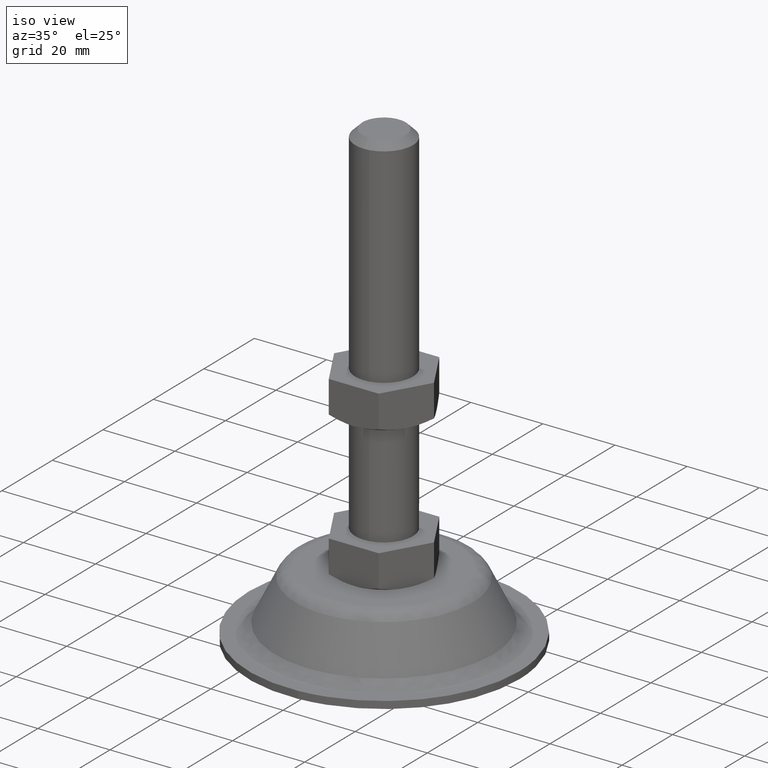
[diagram: clean part render]
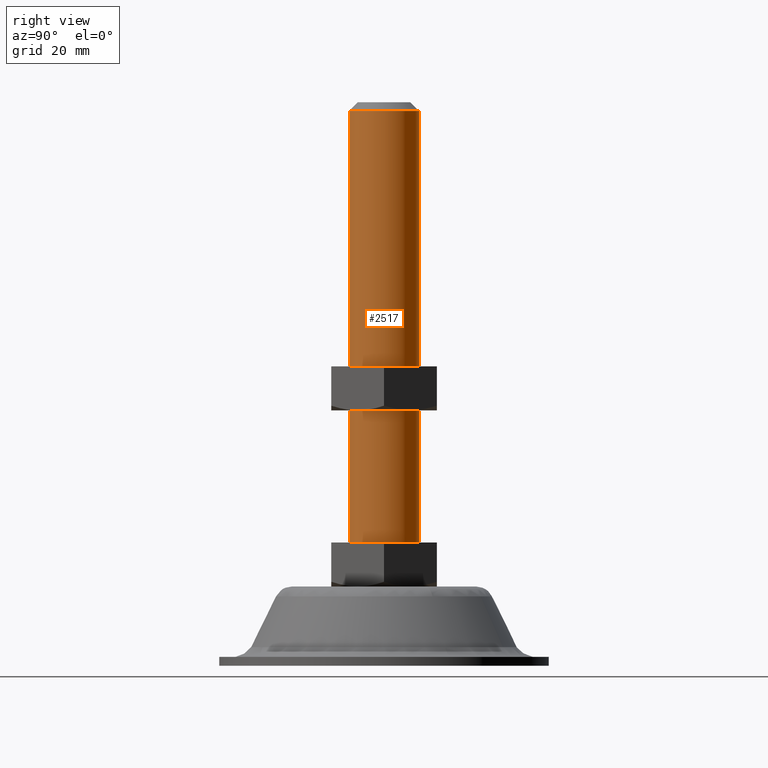
[diagram: tour spotlight — one face highlighted and labeled with its STEP entity id]
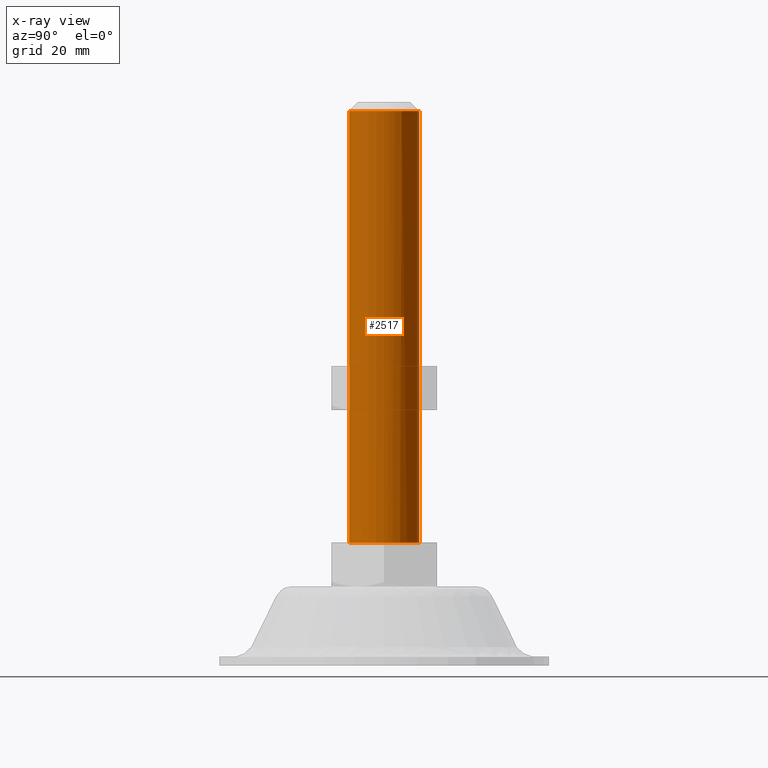
[diagram: x-ray of the same camera — body ghosted, this tour face saturated]
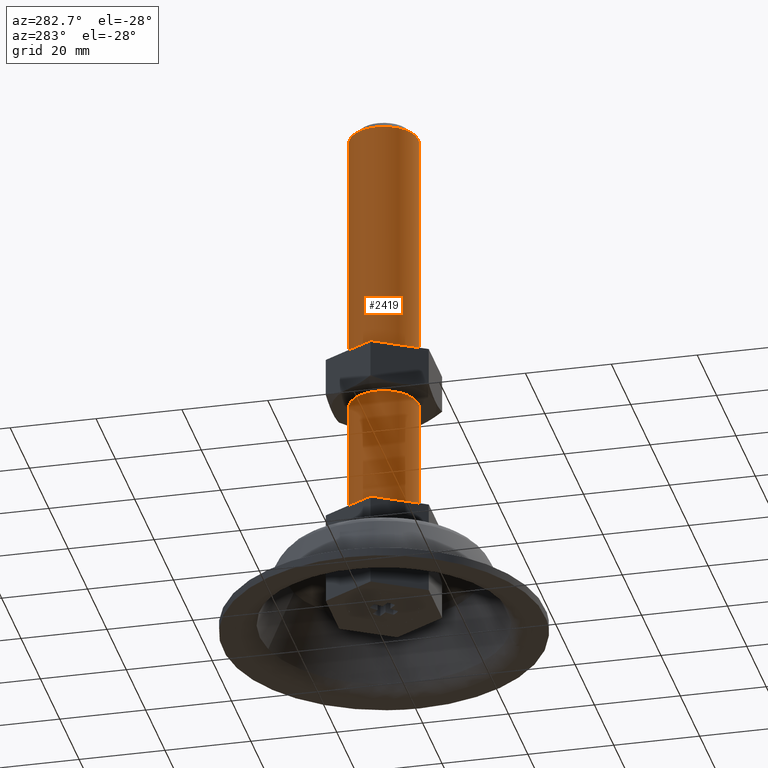
[diagram: tour spotlight — one face highlighted and labeled with its STEP entity id]
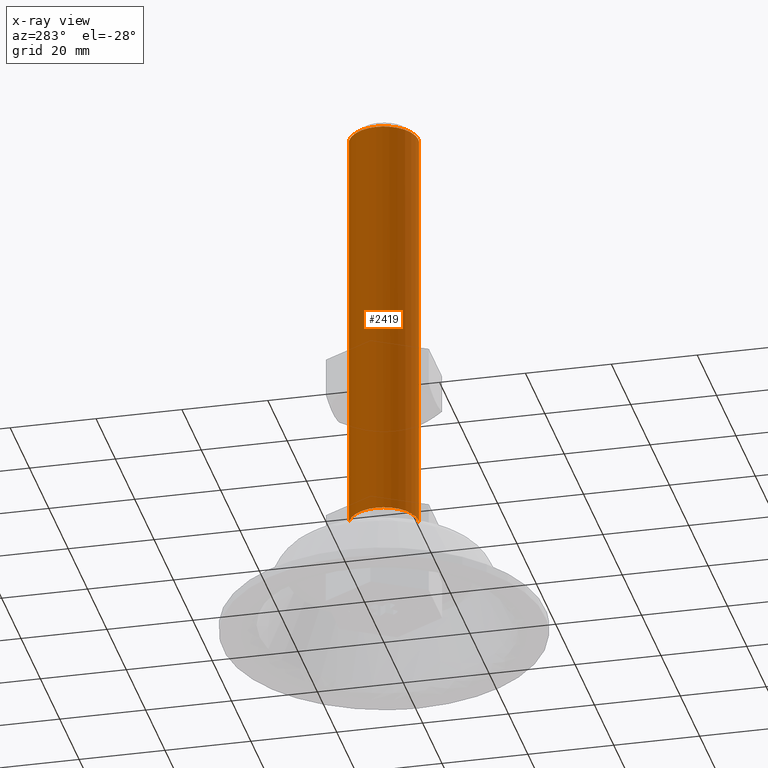
[diagram: x-ray of the same camera — body ghosted, this tour face saturated]
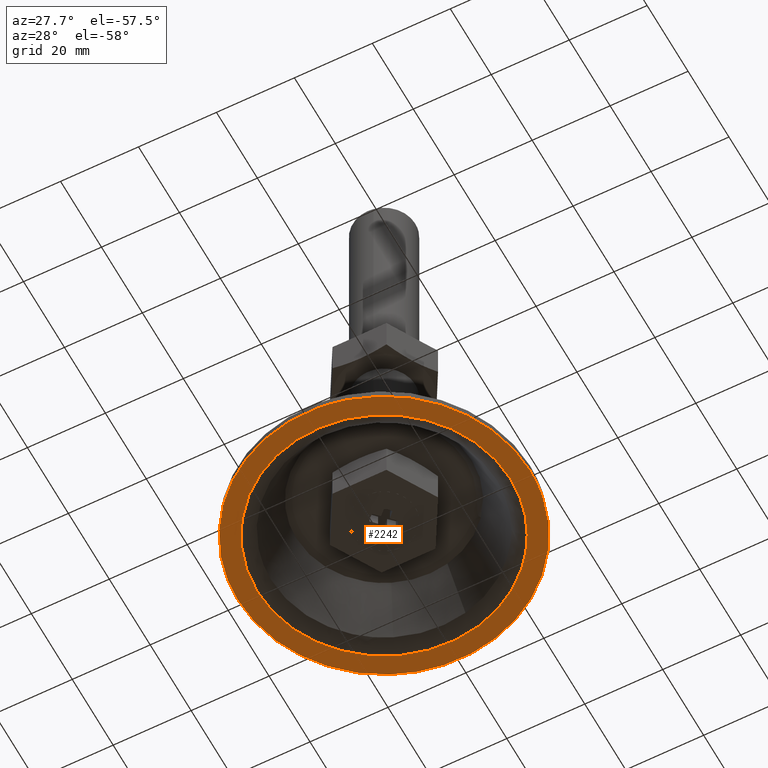
[diagram: tour spotlight — one face highlighted and labeled with its STEP entity id]
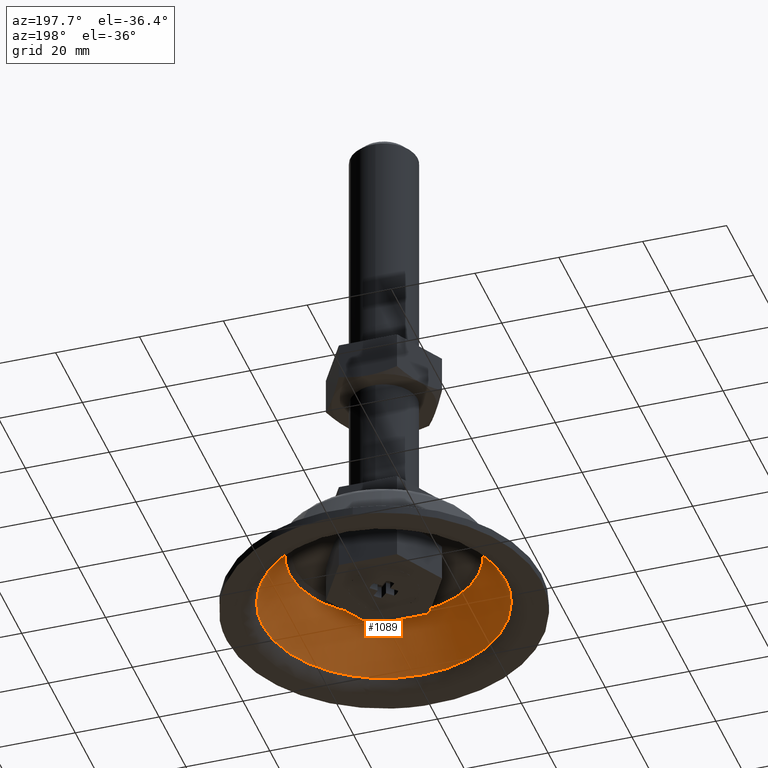
[diagram: tour spotlight — one face highlighted and labeled with its STEP entity id]
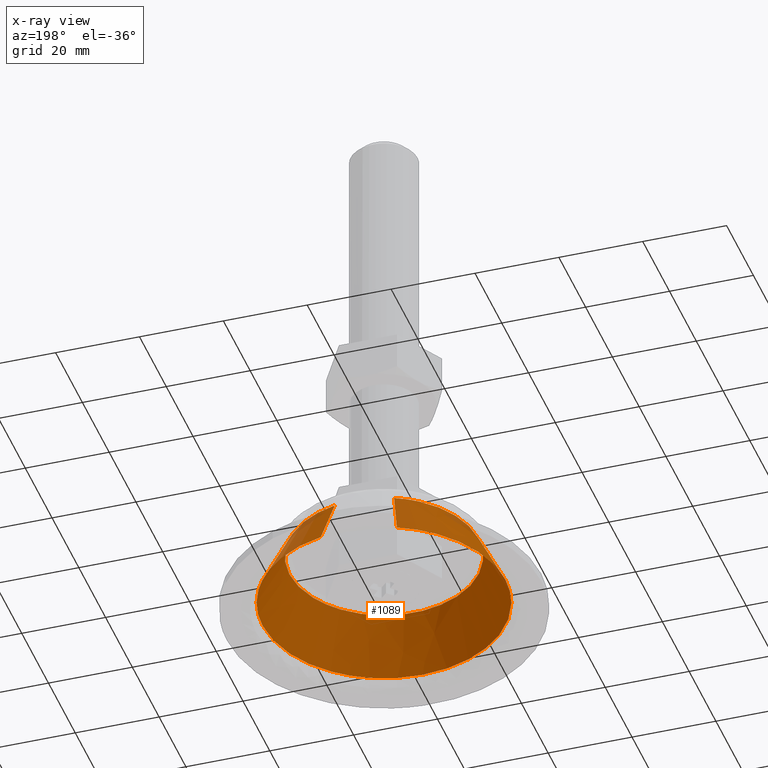
[diagram: x-ray of the same camera — body ghosted, this tour face saturated]
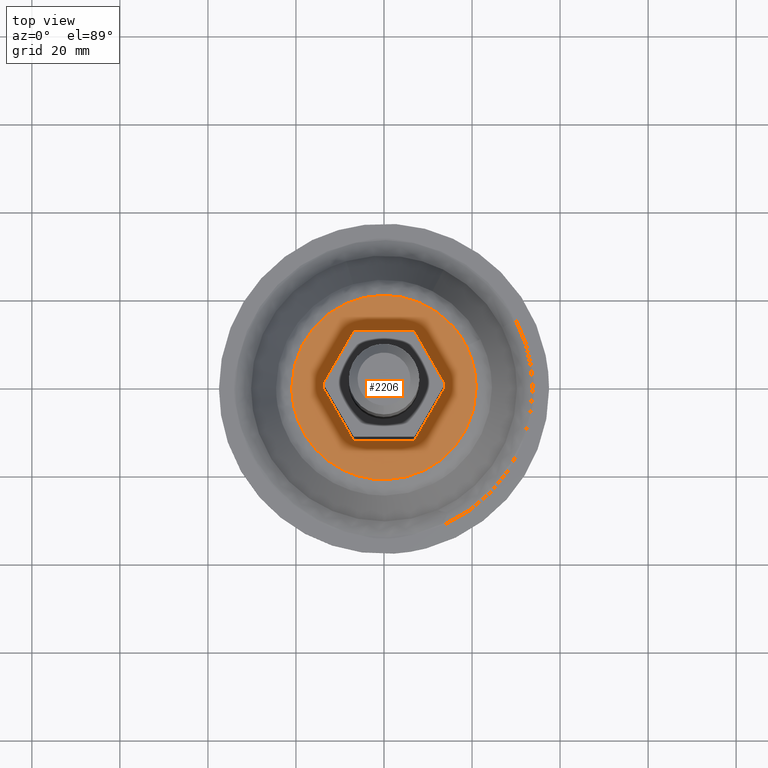
[diagram: tour spotlight — one face highlighted and labeled with its STEP entity id]
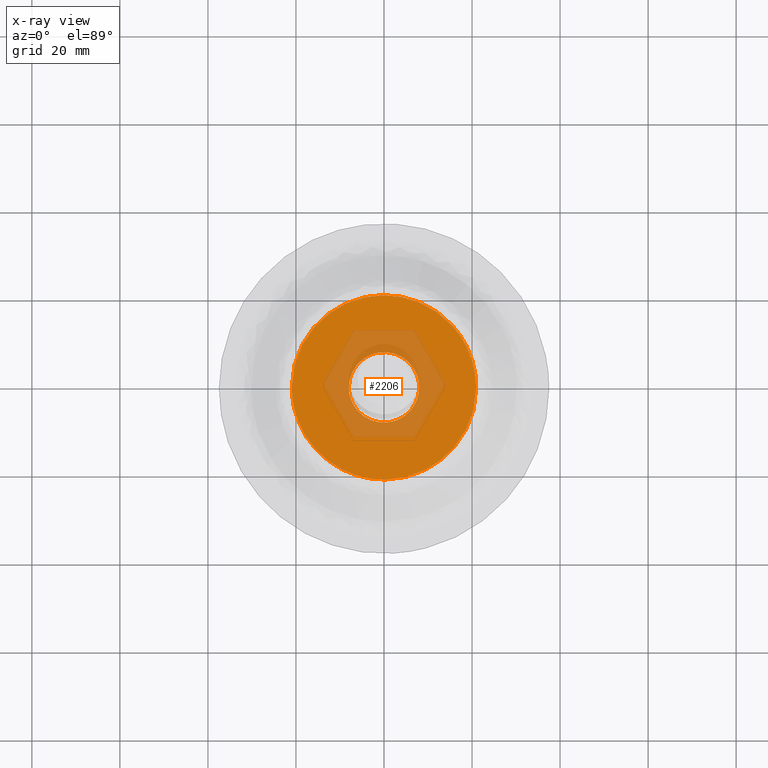
[diagram: x-ray of the same camera — body ghosted, this tour face saturated]
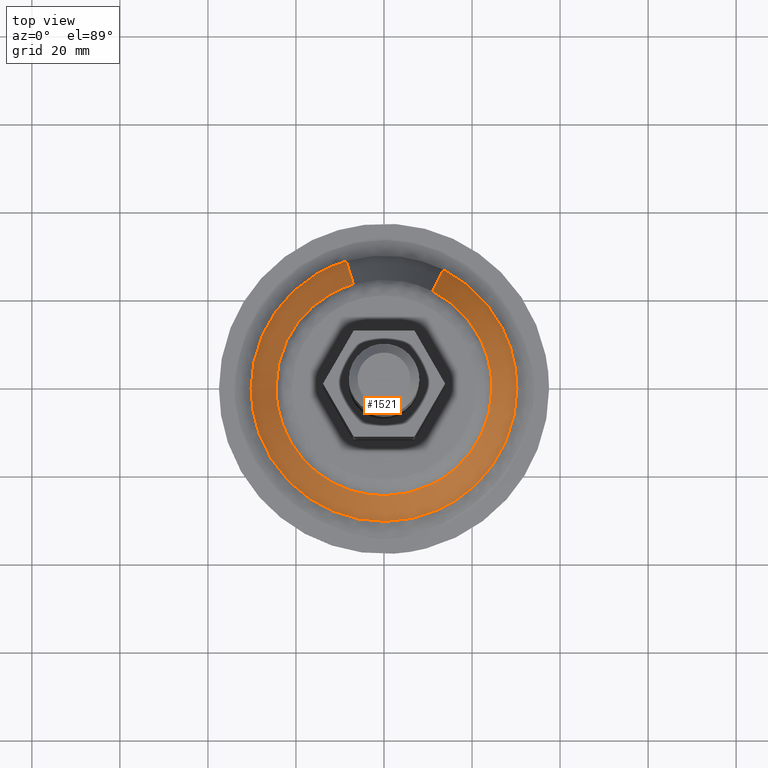
[diagram: tour spotlight — one face highlighted and labeled with its STEP entity id]
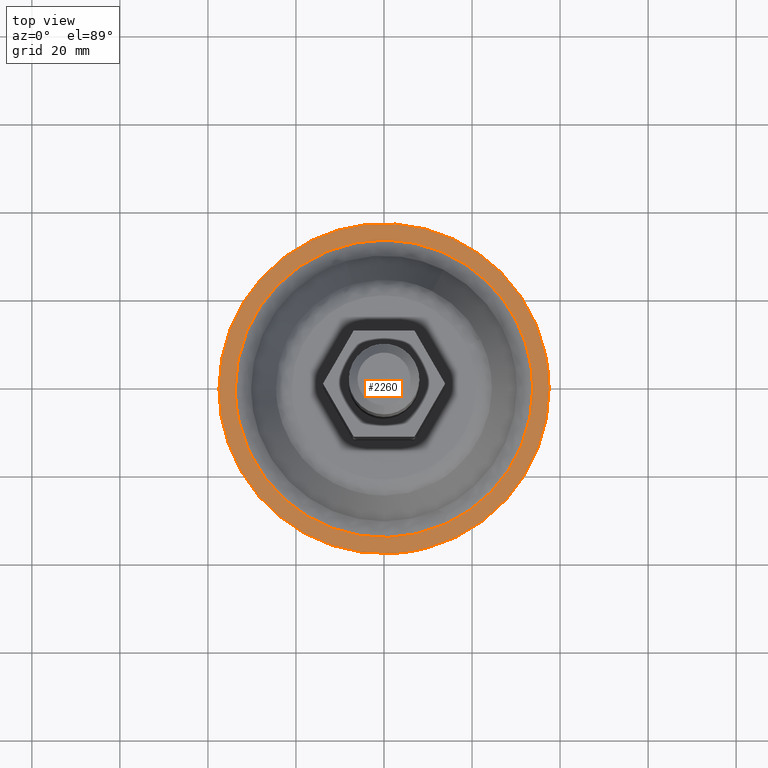
[diagram: tour spotlight — one face highlighted and labeled with its STEP entity id]
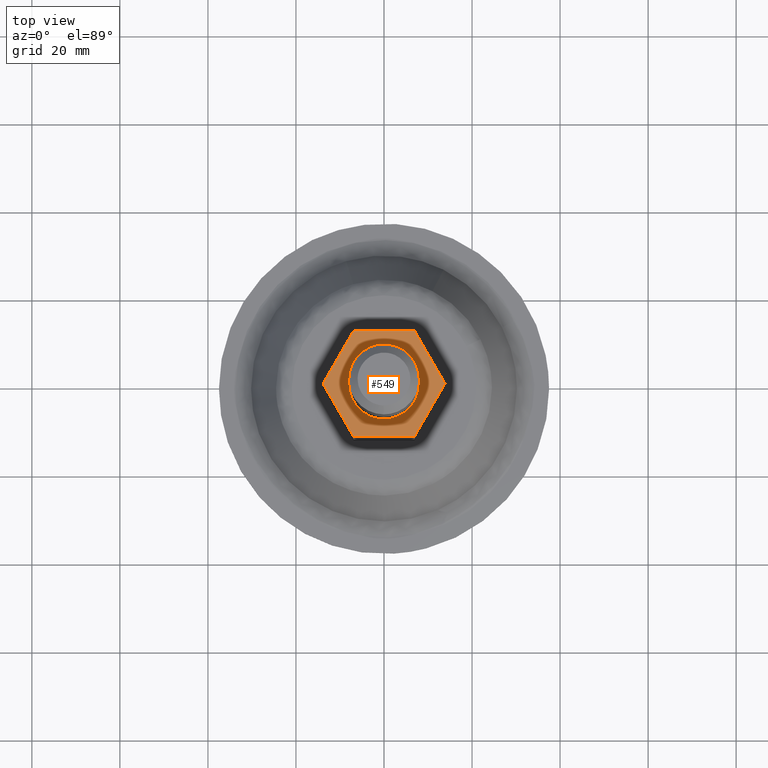
[diagram: tour spotlight — one face highlighted and labeled with its STEP entity id]
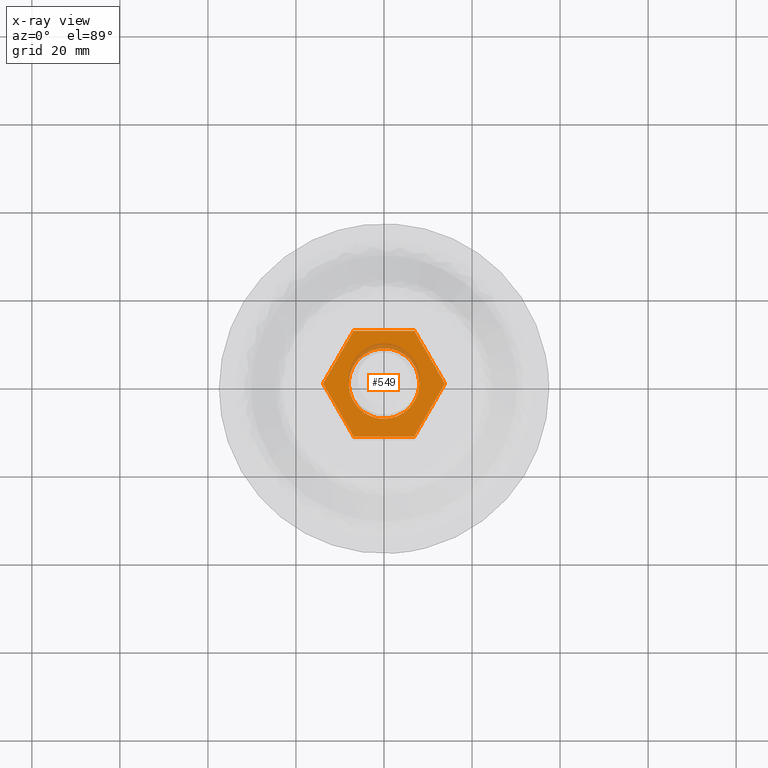
[diagram: x-ray of the same camera — body ghosted, this tour face saturated]
A machine part: a face-by-face anatomy tour. The part has 83 B-rep faces; the first image is the clean iso view, then the 8 largest visible faces are spotlighted one at a time (largest first), each with its STEP entity span.

Face 1 — right view, entity #2517. An x-ray twin of the same camera follows (body ghosted, this face saturated) — the face is partly hidden behind the body. In plain terms, the highlighted face is a freeform B-spline surface patch.
Definition (entity closure, byte-faithful):
#2324=CARTESIAN_POINT('',(1.407112720970552,-7.875279918230389,126.0));
#2325=VERTEX_POINT('',#2324);
#2358=CARTESIAN_POINT('',(-0.488388316431298,7.985078387365611,126.0));
#2359=VERTEX_POINT('',#2358);
#2373=CARTESIAN_POINT('',(-0.488388316431298,7.985078387365611,28.0));
#2374=VERTEX_POINT('',#2373);
#2375=CARTESIAN_POINT('',(-0.488388316431298,7.985078387365611,126.0));
#2376=CARTESIAN_POINT('',(-0.488388316431298,7.985078387365611,28.0));
#2377=QUASI_UNIFORM_CURVE('',1,(#2375,#2376),.UNSPECIFIED.,.F.,.U.);
#2378=EDGE_CURVE('',#2359,#2374,#2377,.T.);
#2395=CARTESIAN_POINT('',(1.407112720970552,-7.875279918230389,28.0));
#2396=VERTEX_POINT('',#2395);
#2412=CARTESIAN_POINT('',(1.407112720970552,-7.875279918230389,126.0));
#2413=CARTESIAN_POINT('',(1.407112720970552,-7.875279918230389,28.0));
#2414=QUASI_UNIFORM_CURVE('',1,(#2412,#2413),.UNSPECIFIED.,.F.,.U.);
#2415=EDGE_CURVE('',#2325,#2396,#2414,.T.);
#2420=CARTESIAN_POINT('',(-0.488388316278856,7.985078387374934,128.449999999999990));
#2421=CARTESIAN_POINT('',(7.496690071096078,8.473466703653790,128.450000000000020));
#2422=CARTESIAN_POINT('',(7.985078387374934,0.488388316278856,128.449999999999990));
#2423=CARTESIAN_POINT('',(8.419984129802099,-6.622257718131118,128.450000000000020));
#2424=CARTESIAN_POINT('',(1.407112720920958,-7.875279918239248,128.450000000000070));
#2425=CARTESIAN_POINT('',(-0.488388316278856,7.985078387374934,25.488750000000000));
#2426=CARTESIAN_POINT('',(7.496690071096078,8.473466703653790,25.488749999999996));
#2427=CARTESIAN_POINT('',(7.985078387374934,0.488388316278856,25.488750000000000));
#2428=CARTESIAN_POINT('',(8.419984129802099,-6.622257718131118,25.488749999999992));
#2429=CARTESIAN_POINT('',(1.407112720920958,-7.875279918239248,25.488750000000003));
#2437=(BOUNDED_SURFACE()B_SPLINE_SURFACE(2,1,((#2420,#2425),(#2421,#2426),(#2422,#2427),(#2423,#2428),(#2424,#2429)),.UNSPECIFIED.,.F.,.F.,.U.)B_SPLINE_SURFACE_WITH_KNOTS((3,2,3),(2,2),(0.0,13.254833995939039,25.449281272202949),(0.0,102.961250000000010),.UNSPECIFIED.)GEOMETRIC_REPRESENTATION_ITEM()RATIONAL_B_SPLINE_SURFACE(((1.0,1.0),(0.707106781186548,0.707106781186548),(1.0,1.0),(0.730538238691624,0.730538238691624),(0.956886118190660,0.956886118190660)))REPRESENTATION_ITEM('')SURFACE());
#2438=CARTESIAN_POINT('',(8.0,0.0,126.0));
#2439=VERTEX_POINT('',#2438);
#2440=CARTESIAN_POINT('',(8.0,0.0,126.0));
#2441=CARTESIAN_POINT('',(8.0,-6.697298226797478,126.000000000000030));
#2442=CARTESIAN_POINT('',(1.407112720970551,-7.875279918230389,125.999999999999990));
#2450=(BOUNDED_CURVE()B_SPLINE_CURVE(2,(#2440,#2441,#2442),.UNSPECIFIED.,.F.,.U.)B_SPLINE_CURVE_WITH_KNOTS((3,3),(0.0,0.219772409025256),.UNSPECIFIED.)CURVE()GEOMETRIC_REPRESENTATION_ITEM()RATIONAL_B_SPLINE_CURVE((1.0,0.742520606856824,0.937736145757143))REPRESENTATION_ITEM(''));
#2451=EDGE_CURVE('',#2439,#2325,#2450,.T.);
#2452=ORIENTED_EDGE('',*,*,#2451,.T.);
#2453=ORIENTED_EDGE('',*,*,#2415,.T.);
#2454=CARTESIAN_POINT('',(8.0,0.0,28.0));
#2455=VERTEX_POINT('',#2454);
#2456=CARTESIAN_POINT('',(8.0,0.0,28.0));
#2457=CARTESIAN_POINT('',(8.0,-6.697298226797478,28.000000000000011));
#2458=CARTESIAN_POINT('',(1.407112720970551,-7.875279918230389,27.999999999999996));
#2466=(BOUNDED_CURVE()B_SPLINE_CURVE(2,(#2456,#2457,#2458),.UNSPECIFIED.,.F.,.U.)B_SPLINE_CURVE_WITH_KNOTS((3,3),(0.0,0.219772409025256),.UNSPECIFIED.)CURVE()GEOMETRIC_REPRESENTATION_ITEM()RATIONAL_B_SPLINE_CURVE((1.0,0.742520606856824,0.937736145757143))REPRESENTATION_ITEM(''));
#2467=EDGE_CURVE('',#2455,#2396,#2466,.T.);
#2468=ORIENTED_EDGE('',*,*,#2467,.F.);
#2469=CARTESIAN_POINT('',(-0.488388316431299,7.985078387365611,28.0));
#2470=CARTESIAN_POINT('',(-0.244422106541581,8.0,27.999999999999996));
#2471=CARTESIAN_POINT('',(0.0,8.0,28.0));
#2472=CARTESIAN_POINT('',(8.0,8.0,27.999999999999996));
#2473=CARTESIAN_POINT('',(8.0,0.0,28.0));
#2481=(BOUNDED_CURVE()B_SPLINE_CURVE(2,(#2469,#2470,#2471,#2472,#2473),.UNSPECIFIED.,.F.,.U.)B_SPLINE_CURVE_WITH_KNOTS((3,2,3),(0.739332962235380,0.750000000000000,1.0),.UNSPECIFIED.)CURVE()GEOMETRIC_REPRESENTATION_ITEM()RATIONAL_B_SPLINE_CURVE((0.976072041659082,0.987502787895663,1.0,0.707106781186548,1.0))REPRESENTATION_ITEM(''));
#2482=EDGE_CURVE('',#2374,#2455,#2481,.T.);
#2483=ORIENTED_EDGE('',*,*,#2482,.F.);
#2484=ORIENTED_EDGE('',*,*,#2378,.F.);
#2485=CARTESIAN_POINT('',(0.993024017373653,7.938129710605528,125.999999999907600));
#2486=VERTEX_POINT('',#2485);
#2487=CARTESIAN_POINT('',(-0.488388316431299,7.985078387365611,125.999999999999940));
#2488=CARTESIAN_POINT('',(-0.244422106541581,8.0,126.000000000000010));
#2489=CARTESIAN_POINT('',(0.0,8.0,126.0));
#2490=CARTESIAN_POINT('',(0.498439420999992,8.0,126.0));
#2491=CARTESIAN_POINT('',(0.993024017373653,7.938129710605529,125.999999999907540));
#2499=(BOUNDED_CURVE()B_SPLINE_CURVE(2,(#2487,#2488,#2489,#2490,#2491),.UNSPECIFIED.,.F.,.U.)B_SPLINE_CURVE_WITH_KNOTS((3,2,3),(0.739332962235380,0.750000000000000,0.771473929001446),.UNSPECIFIED.)CURVE()GEOMETRIC_REPRESENTATION_ITEM()RATIONAL_B_SPLINE_CURVE((0.976072041659082,0.987502787895663,1.0,0.974841727256780,0.954005430215056))REPRESENTATION_ITEM(''));
#2500=EDGE_CURVE('',#2359,#2486,#2499,.T.);
#2501=ORIENTED_EDGE('',*,*,#2500,.T.);
#2502=CARTESIAN_POINT('',(0.993024017373653,7.938129710605529,125.999999999907590));
#2503=CARTESIAN_POINT('',(8.0,7.061588799904500,126.0));
#2504=CARTESIAN_POINT('',(8.0,0.0,126.0));
#2512=(BOUNDED_CURVE()B_SPLINE_CURVE(2,(#2502,#2503,#2504),.UNSPECIFIED.,.F.,.U.)B_SPLINE_CURVE_WITH_KNOTS((3,3),(0.771473929001445,1.0),.UNSPECIFIED.)CURVE()GEOMETRIC_REPRESENTATION_ITEM()RATIONAL_B_SPLINE_CURVE((0.954005430215058,0.732265053929766,1.0))REPRESENTATION_ITEM(''));
#2513=EDGE_CURVE('',#2486,#2439,#2512,.T.);
#2514=ORIENTED_EDGE('',*,*,#2513,.T.);
#2515=EDGE_LOOP('',(#2452,#2453,#2468,#2483,#2484,#2501,#2514));
#2516=FACE_OUTER_BOUND('',#2515,.T.);
#2517=ADVANCED_FACE('',(#2516),#2437,.T.);

Face 2 — auxiliary view, entity #2419. An x-ray twin of the same camera follows (body ghosted, this face saturated) — the face is partly hidden behind the body. In plain terms, the highlighted face is a freeform B-spline surface patch.
Definition (entity closure, byte-faithful):
#2302=CARTESIAN_POINT('',(1.407112720920958,-7.875279918239248,128.450000000000070));
#2303=CARTESIAN_POINT('',(0.950930602279088,-7.956788089232766,128.450000000000050));
#2304=CARTESIAN_POINT('',(0.488388316278856,-7.985078387374934,128.449999999999990));
#2305=CARTESIAN_POINT('',(-7.496690071096078,-8.473466703653790,128.450000000000020));
#2306=CARTESIAN_POINT('',(-7.985078387374934,-0.488388316278856,128.449999999999990));
#2307=CARTESIAN_POINT('',(-8.473466703653790,7.496690071096078,128.450000000000020));
#2308=CARTESIAN_POINT('',(-0.488388316278856,7.985078387374934,128.449999999999990));
#2309=CARTESIAN_POINT('',(1.407112720920958,-7.875279918239248,25.488750000000003));
#2310=CARTESIAN_POINT('',(0.950930602279088,-7.956788089232766,25.488750000000003));
#2311=CARTESIAN_POINT('',(0.488388316278856,-7.985078387374934,25.488750000000000));
#2312=CARTESIAN_POINT('',(-7.496690071096078,-8.473466703653790,25.488749999999996));
#2313=CARTESIAN_POINT('',(-7.985078387374934,-0.488388316278856,25.488750000000000));
#2314=CARTESIAN_POINT('',(-8.473466703653790,7.496690071096078,25.488749999999996));
#2315=CARTESIAN_POINT('',(-0.488388316278856,7.985078387374934,25.488750000000000));
#2323=(BOUNDED_SURFACE()B_SPLINE_SURFACE(2,1,((#2302,#2309),(#2303,#2310),(#2304,#2311),(#2305,#2312),(#2306,#2313),(#2307,#2314),(#2308,#2315)),.UNSPECIFIED.,.F.,.F.,.U.)B_SPLINE_SURFACE_WITH_KNOTS((3,2,2,3),(2,2),(0.0,1.060386719675124,14.315220715614160,27.570054711553190),(0.0,102.961250000000010),.UNSPECIFIED.)GEOMETRIC_REPRESENTATION_ITEM()RATIONAL_B_SPLINE_SURFACE(((0.956886118190660,0.956886118190660),(0.976568542494924,0.976568542494924),(1.0,1.0),(0.707106781186548,0.707106781186548),(1.0,1.0),(0.707106781186548,0.707106781186548),(1.0,1.0)))REPRESENTATION_ITEM('')SURFACE());
#2324=CARTESIAN_POINT('',(1.407112720970552,-7.875279918230389,126.0));
#2325=VERTEX_POINT('',#2324);
#2326=CARTESIAN_POINT('',(-0.069812284724302,-7.999695384607404,125.999999999899500));
#2327=VERTEX_POINT('',#2326);
#2328=CARTESIAN_POINT('',(1.407112720970551,-7.875279918230389,125.999999999999990));
#2329=CARTESIAN_POINT('',(0.709083671352502,-8.0,126.000000000000040));
#2330=CARTESIAN_POINT('',(0.0,-8.0,126.0));
#2331=CARTESIAN_POINT('',(-0.034906807302085,-8.0,126.000000000000040));
#2332=CARTESIAN_POINT('',(-0.069812284724302,-7.999695384607404,125.999999999899500));
#2340=(BOUNDED_CURVE()B_SPLINE_CURVE(2,(#2328,#2329,#2330,#2331,#2332),.UNSPECIFIED.,.F.,.U.)B_SPLINE_CURVE_WITH_KNOTS((3,2,3),(0.219772409025256,0.250000000000000,0.251539894367418),.UNSPECIFIED.)CURVE()GEOMETRIC_REPRESENTATION_ITEM()RATIONAL_B_SPLINE_CURVE((0.937736145757143,0.964586174329723,1.0,0.998195901528377,0.996414028025353))REPRESENTATION_ITEM(''));
#2341=EDGE_CURVE('',#2325,#2327,#2340,.T.);
#2342=ORIENTED_EDGE('',*,*,#2341,.T.);
#2343=CARTESIAN_POINT('',(-8.0,0.0,126.0));
#2344=VERTEX_POINT('',#2343);
#2345=CARTESIAN_POINT('',(-0.069812284724302,-7.999695384607404,125.999999999899560));
#2346=CARTESIAN_POINT('',(-8.0,-7.930489683299643,126.0));
#2347=CARTESIAN_POINT('',(-8.0,0.0,126.0));
#2355=(BOUNDED_CURVE()B_SPLINE_CURVE(2,(#2345,#2346,#2347),.UNSPECIFIED.,.F.,.U.)B_SPLINE_CURVE_WITH_KNOTS((3,3),(0.251539894367418,0.500000000000000),.UNSPECIFIED.)CURVE()GEOMETRIC_REPRESENTATION_ITEM()RATIONAL_B_SPLINE_CURVE((0.996414028025352,0.708910879658170,1.0))REPRESENTATION_ITEM(''));
#2356=EDGE_CURVE('',#2327,#2344,#2355,.T.);
#2357=ORIENTED_EDGE('',*,*,#2356,.T.);
#2358=CARTESIAN_POINT('',(-0.488388316431298,7.985078387365611,126.0));
#2359=VERTEX_POINT('',#2358);
#2360=CARTESIAN_POINT('',(-8.0,0.0,126.0));
#2361=CARTESIAN_POINT('',(-8.0,7.525648534957727,126.0));
#2362=CARTESIAN_POINT('',(-0.488388316431299,7.985078387365610,125.999999999999960));
#2370=(BOUNDED_CURVE()B_SPLINE_CURVE(2,(#2360,#2361,#2362),.UNSPECIFIED.,.F.,.U.)B_SPLINE_CURVE_WITH_KNOTS((3,3),(0.500000000000000,0.739332962235381),.UNSPECIFIED.)CURVE()GEOMETRIC_REPRESENTATION_ITEM()RATIONAL_B_SPLINE_CURVE((1.0,0.719603993290883,0.976072041659084))REPRESENTATION_ITEM(''));
#2371=EDGE_CURVE('',#2344,#2359,#2370,.T.);
#2372=ORIENTED_EDGE('',*,*,#2371,.T.);
#2373=CARTESIAN_POINT('',(-0.488388316431298,7.985078387365611,28.0));
#2374=VERTEX_POINT('',#2373);
#2375=CARTESIAN_POINT('',(-0.488388316431298,7.985078387365611,126.0));
#2376=CARTESIAN_POINT('',(-0.488388316431298,7.985078387365611,28.0));
#2377=QUASI_UNIFORM_CURVE('',1,(#2375,#2376),.UNSPECIFIED.,.F.,.U.);
#2378=EDGE_CURVE('',#2359,#2374,#2377,.T.);
#2379=ORIENTED_EDGE('',*,*,#2378,.T.);
#2380=CARTESIAN_POINT('',(-8.0,0.0,28.0));
#2381=VERTEX_POINT('',#2380);
#2382=CARTESIAN_POINT('',(-8.0,0.0,28.0));
#2383=CARTESIAN_POINT('',(-8.0,7.525648534957727,27.999999999999996));
#2384=CARTESIAN_POINT('',(-0.488388316431299,7.985078387365610,28.000000000000004));
#2392=(BOUNDED_CURVE()B_SPLINE_CURVE(2,(#2382,#2383,#2384),.UNSPECIFIED.,.F.,.U.)B_SPLINE_CURVE_WITH_KNOTS((3,3),(0.500000000000000,0.739332962235381),.UNSPECIFIED.)CURVE()GEOMETRIC_REPRESENTATION_ITEM()RATIONAL_B_SPLINE_CURVE((1.0,0.719603993290883,0.976072041659084))REPRESENTATION_ITEM(''));
#2393=EDGE_CURVE('',#2381,#2374,#2392,.T.);
#2394=ORIENTED_EDGE('',*,*,#2393,.F.);
#2395=CARTESIAN_POINT('',(1.407112720970552,-7.875279918230389,28.0));
#2396=VERTEX_POINT('',#2395);
#2397=CARTESIAN_POINT('',(1.407112720970551,-7.875279918230389,27.999999999999996));
#2398=CARTESIAN_POINT('',(0.709083671352502,-8.0,28.000000000000004));
#2399=CARTESIAN_POINT('',(0.0,-8.0,28.0));
#2400=CARTESIAN_POINT('',(-8.0,-8.0,27.999999999999996));
#2401=CARTESIAN_POINT('',(-8.0,0.0,28.0));
#2409=(BOUNDED_CURVE()B_SPLINE_CURVE(2,(#2397,#2398,#2399,#2400,#2401),.UNSPECIFIED.,.F.,.U.)B_SPLINE_CURVE_WITH_KNOTS((3,2,3),(0.219772409025256,0.250000000000000,0.500000000000000),.UNSPECIFIED.)CURVE()GEOMETRIC_REPRESENTATION_ITEM()RATIONAL_B_SPLINE_CURVE((0.937736145757143,0.964586174329723,1.0,0.707106781186548,1.0))REPRESENTATION_ITEM(''));
#2410=EDGE_CURVE('',#2396,#2381,#2409,.T.);
#2411=ORIENTED_EDGE('',*,*,#2410,.F.);
#2412=CARTESIAN_POINT('',(1.407112720970552,-7.875279918230389,126.0));
#2413=CARTESIAN_POINT('',(1.407112720970552,-7.875279918230389,28.0));
#2414=QUASI_UNIFORM_CURVE('',1,(#2412,#2413),.UNSPECIFIED.,.F.,.U.);
#2415=EDGE_CURVE('',#2325,#2396,#2414,.T.);
#2416=ORIENTED_EDGE('',*,*,#2415,.F.);
#2417=EDGE_LOOP('',(#2342,#2357,#2372,#2379,#2394,#2411,#2416));
#2418=FACE_OUTER_BOUND('',#2417,.T.);
#2419=ADVANCED_FACE('',(#2418),#2323,.T.);

Face 3 — auxiliary view, entity #2242. In plain terms, the highlighted face is a freeform B-spline surface patch.
Definition (entity closure, byte-faithful):
#1161=CARTESIAN_POINT('',(-4.426262100585168,37.237859817884882,-1.441791E-012));
#1162=VERTEX_POINT('',#1161);
#1163=CARTESIAN_POINT('',(37.500000000000000,0.0,0.0));
#1164=VERTEX_POINT('',#1163);
#1165=CARTESIAN_POINT('',(-4.426262100585169,37.237859817884882,-1.441791E-012));
#1166=CARTESIAN_POINT('',(-2.220893522726182,37.499999999999993,0.0));
#1167=CARTESIAN_POINT('',(0.0,37.500000000000000,0.0));
#1168=CARTESIAN_POINT('',(37.500000000000000,37.500000000000000,0.0));
#1169=CARTESIAN_POINT('',(37.500000000000000,0.0,0.0));
#1177=(BOUNDED_CURVE()B_SPLINE_CURVE(2,(#1165,#1166,#1167,#1168,#1169),.UNSPECIFIED.,.F.,.U.)B_SPLINE_CURVE_WITH_KNOTS((3,2,3),(0.229562571996310,0.250000000000000,0.500000000000000),.UNSPECIFIED.)CURVE()GEOMETRIC_REPRESENTATION_ITEM()RATIONAL_B_SPLINE_CURVE((0.956026947214111,0.976056063710924,1.0,0.707106781186547,1.0))REPRESENTATION_ITEM(''));
#1178=EDGE_CURVE('',#1162,#1164,#1177,.T.);
#1219=CARTESIAN_POINT('',(2.289286729155962,-37.430056989945712,1.852202E-012));
#1220=VERTEX_POINT('',#1219);
#1226=CARTESIAN_POINT('',(37.500000000000000,0.0,0.0));
#1227=CARTESIAN_POINT('',(37.500000000000000,-35.276509143728212,0.0));
#1228=CARTESIAN_POINT('',(2.289286729155962,-37.430056989945705,1.852202E-012));
#1236=(BOUNDED_CURVE()B_SPLINE_CURVE(2,(#1226,#1227,#1228),.UNSPECIFIED.,.F.,.U.)B_SPLINE_CURVE_WITH_KNOTS((3,3),(0.500000000000000,0.739333116687507),.UNSPECIFIED.)CURVE()GEOMETRIC_REPRESENTATION_ITEM()RATIONAL_B_SPLINE_CURVE((1.0,0.719603812338962,0.976072372679614))REPRESENTATION_ITEM(''));
#1237=EDGE_CURVE('',#1164,#1220,#1236,.T.);
#1260=CARTESIAN_POINT('',(-37.500000000000000,0.0,0.0));
#1261=VERTEX_POINT('',#1260);
#1262=CARTESIAN_POINT('',(-37.500000000000000,0.0,0.0));
#1263=CARTESIAN_POINT('',(-37.500000000000000,33.306564268017716,0.0));
#1264=CARTESIAN_POINT('',(-4.426262100585169,37.237859817884882,-1.441791E-012));
#1272=(BOUNDED_CURVE()B_SPLINE_CURVE(2,(#1262,#1263,#1264),.UNSPECIFIED.,.F.,.U.)B_SPLINE_CURVE_WITH_KNOTS((3,3),(0.0,0.229562571996310),.UNSPECIFIED.)CURVE()GEOMETRIC_REPRESENTATION_ITEM()RATIONAL_B_SPLINE_CURVE((1.0,0.731050717475624,0.956026947214111))REPRESENTATION_ITEM(''));
#1273=EDGE_CURVE('',#1261,#1162,#1272,.T.);
#1275=CARTESIAN_POINT('',(2.289286729155962,-37.430056989945705,1.852202E-012));
#1276=CARTESIAN_POINT('',(1.145711825027507,-37.500000000000007,0.0));
#1277=CARTESIAN_POINT('',(0.0,-37.500000000000000,0.0));
#1278=CARTESIAN_POINT('',(-37.500000000000000,-37.500000000000000,0.0));
#1279=CARTESIAN_POINT('',(-37.500000000000000,0.0,0.0));
#1287=(BOUNDED_CURVE()B_SPLINE_CURVE(2,(#1275,#1276,#1277,#1278,#1279),.UNSPECIFIED.,.F.,.U.)B_SPLINE_CURVE_WITH_KNOTS((3,2,3),(0.739333116687507,0.750000000000000,1.0),.UNSPECIFIED.)CURVE()GEOMETRIC_REPRESENTATION_ITEM()RATIONAL_B_SPLINE_CURVE((0.976072372679614,0.987502968847585,1.0,0.707106781186547,1.0))REPRESENTATION_ITEM(''));
#1288=EDGE_CURVE('',#1220,#1261,#1287,.T.);
#1757=CARTESIAN_POINT('',(13.274496829294501,-29.701465754623950,6.272560E-016));
#1758=VERTEX_POINT('',#1757);
#1772=CARTESIAN_POINT('',(-32.532896183340213,0.0,0.0));
#1773=VERTEX_POINT('',#1772);
#1774=CARTESIAN_POINT('',(13.274496829294508,-29.701465754623957,6.272560E-016));
#1775=CARTESIAN_POINT('',(6.939218364107354,-32.532896183340199,0.0));
#1776=CARTESIAN_POINT('',(0.0,-32.532896183340213,0.0));
#1777=CARTESIAN_POINT('',(-32.532896183340213,-32.532896183340213,0.0));
#1778=CARTESIAN_POINT('',(-32.532896183340213,0.0,0.0));
#1786=(BOUNDED_CURVE()B_SPLINE_CURVE(2,(#1774,#1775,#1776,#1777,#1778),.UNSPECIFIED.,.F.,.U.)B_SPLINE_CURVE_WITH_KNOTS((3,2,3),(0.680709483577548,0.750000000000000,1.0),.UNSPECIFIED.)CURVE()GEOMETRIC_REPRESENTATION_ITEM()RATIONAL_B_SPLINE_CURVE((0.882641638332011,0.918821110447126,1.0,0.707106781186547,1.0))REPRESENTATION_ITEM(''));
#1787=EDGE_CURVE('',#1758,#1773,#1786,.T.);
#1789=CARTESIAN_POINT('',(28.893650884777909,14.951463893068400,6.131464E-016));
#1790=VERTEX_POINT('',#1789);
#1791=CARTESIAN_POINT('',(-32.532896183340213,0.0,0.0));
#1792=CARTESIAN_POINT('',(-32.532896183340213,32.532896183340213,0.0));
#1793=CARTESIAN_POINT('',(0.0,32.532896183340213,0.0));
#1794=CARTESIAN_POINT('',(19.795868431224800,32.532896183340206,0.0));
#1795=CARTESIAN_POINT('',(28.893650884777905,14.951463893068404,6.131464E-016));
#1803=(BOUNDED_CURVE()B_SPLINE_CURVE(2,(#1791,#1792,#1793,#1794,#1795),.UNSPECIFIED.,.F.,.U.)B_SPLINE_CURVE_WITH_KNOTS((3,2,3),(0.0,0.250000000000000,0.421825371002413),.UNSPECIFIED.)CURVE()GEOMETRIC_REPRESENTATION_ITEM()RATIONAL_B_SPLINE_CURVE((1.0,0.707106781186547,1.0,0.798694056053151,0.874103860135568))REPRESENTATION_ITEM(''));
#1804=EDGE_CURVE('',#1773,#1790,#1803,.T.);
#1851=CARTESIAN_POINT('',(32.532896183340213,0.0,0.0));
#1852=VERTEX_POINT('',#1851);
#1853=CARTESIAN_POINT('',(28.893650884777905,14.951463893068404,6.131464E-016));
#1854=CARTESIAN_POINT('',(32.532896183340213,7.918635278245384,0.0));
#1855=CARTESIAN_POINT('',(32.532896183340213,0.0,0.0));
#1863=(BOUNDED_CURVE()B_SPLINE_CURVE(2,(#1853,#1854,#1855),.UNSPECIFIED.,.F.,.U.)B_SPLINE_CURVE_WITH_KNOTS((3,3),(0.421825371002413,0.500000000000000),.UNSPECIFIED.)CURVE()GEOMETRIC_REPRESENTATION_ITEM()RATIONAL_B_SPLINE_CURVE((0.874103860135568,0.908412725133397,1.0))REPRESENTATION_ITEM(''));
#1864=EDGE_CURVE('',#1790,#1852,#1863,.T.);
#1866=CARTESIAN_POINT('',(32.532896183340213,0.0,0.0));
#1867=CARTESIAN_POINT('',(32.532896183340206,-21.094295884303055,0.0));
#1868=CARTESIAN_POINT('',(13.274496829294502,-29.701465754623950,6.272560E-016));
#1876=(BOUNDED_CURVE()B_SPLINE_CURVE(2,(#1866,#1867,#1868),.UNSPECIFIED.,.F.,.U.)B_SPLINE_CURVE_WITH_KNOTS((3,3),(0.500000000000000,0.680709483577548),.UNSPECIFIED.)CURVE()GEOMETRIC_REPRESENTATION_ITEM()RATIONAL_B_SPLINE_CURVE((1.0,0.788285670739421,0.882641638332011))REPRESENTATION_ITEM(''));
#1877=EDGE_CURVE('',#1852,#1758,#1876,.T.);
#2225=CARTESIAN_POINT('',(-41.246249854635451,-41.245338546059983,0.0));
#2226=CARTESIAN_POINT('',(41.246251866292212,-41.245338546059983,0.0));
#2227=CARTESIAN_POINT('',(-41.246249854635451,41.245567874930757,0.0));
#2228=CARTESIAN_POINT('',(41.246251866292212,41.245567874930757,0.0));
#2229=B_SPLINE_SURFACE_WITH_KNOTS('',1,1,((#2225,#2227),(#2226,#2228)),.UNSPECIFIED.,.F.,.F.,.U.,(2,2),(2,2),(0.0,82.492501720927663),(0.0,82.490906420990740),.UNSPECIFIED.);
#2230=ORIENTED_EDGE('',*,*,#1273,.T.);
#2231=ORIENTED_EDGE('',*,*,#1178,.T.);
#2232=ORIENTED_EDGE('',*,*,#1237,.T.);
#2233=ORIENTED_EDGE('',*,*,#1288,.T.);
#2234=EDGE_LOOP('',(#2230,#2231,#2232,#2233));
#2235=FACE_OUTER_BOUND('',#2234,.T.);
#2236=ORIENTED_EDGE('',*,*,#1804,.F.);
#2237=ORIENTED_EDGE('',*,*,#1787,.F.);
#2238=ORIENTED_EDGE('',*,*,#1877,.F.);
#2239=ORIENTED_EDGE('',*,*,#1864,.F.);
#2240=EDGE_LOOP('',(#2236,#2237,#2238,#2239));
#2241=FACE_BOUND('',#2240,.T.);
#2242=ADVANCED_FACE('',(#2235,#2241),#2229,.F.);

Face 4 — auxiliary view, entity #1089. An x-ray twin of the same camera follows (body ghosted, this face saturated) — the face is partly hidden behind the body. In plain terms, the highlighted face is a freeform B-spline surface patch.
Definition (entity closure, byte-faithful):
#893=CARTESIAN_POINT('',(4.664071262720270,21.889087877551468,15.601417420348987));
#894=CARTESIAN_POINT('',(15.930792494224734,19.488403526750712,15.601417420348993));
#895=CARTESIAN_POINT('',(20.524241453859592,8.924194170824334,15.601417420348991));
#896=CARTESIAN_POINT('',(29.448435624683928,-11.600047283035257,15.601417420348982));
#897=CARTESIAN_POINT('',(8.924194170824334,-20.524241453859592,15.601417420348991));
#898=CARTESIAN_POINT('',(-11.600047283035257,-29.448435624683928,15.601417420348982));
#899=CARTESIAN_POINT('',(-20.524241453859592,-8.924194170824334,15.601417420348991));
#900=CARTESIAN_POINT('',(-29.448435624683928,11.600047283035257,15.601417420348982));
#901=CARTESIAN_POINT('',(-8.924194170824334,20.524241453859592,15.601417420348991));
#902=CARTESIAN_POINT('',(6.065747420671807,28.467334835848430,1.902941294069691));
#903=CARTESIAN_POINT('',(20.718414886470182,25.345181659264302,1.902941294069691));
#904=CARTESIAN_POINT('',(26.692316143425280,11.606149375530819,1.902941294069692));
#905=CARTESIAN_POINT('',(38.298465518956085,-15.086166767894470,1.902941294069692));
#906=CARTESIAN_POINT('',(11.606149375530819,-26.692316143425280,1.902941294069692));
#907=CARTESIAN_POINT('',(-15.086166767894470,-38.298465518956085,1.902941294069692));
#908=CARTESIAN_POINT('',(-26.692316143425280,-11.606149375530819,1.902941294069692));
#909=CARTESIAN_POINT('',(-38.298465518956085,15.086166767894470,1.902941294069692));
#910=CARTESIAN_POINT('',(-11.606149375530819,26.692316143425280,1.902941294069691));
#918=(BOUNDED_SURFACE()B_SPLINE_SURFACE(2,1,((#893,#902),(#894,#903),(#895,#904),(#896,#905),(#897,#906),(#898,#907),(#899,#908),(#900,#909),(#901,#910)),.UNSPECIFIED.,.F.,.F.,.U.)B_SPLINE_SURFACE_WITH_KNOTS((3,2,2,2,3),(2,2),(0.0,28.935036209496310,77.160096558656832,125.385156907817400,173.610217256977900),(0.0,15.260611956221050),.UNSPECIFIED.)GEOMETRIC_REPRESENTATION_ITEM()RATIONAL_B_SPLINE_SURFACE(((0.859411254969543,0.859411254969543),(0.824264068711928,0.824264068711928),(1.0,1.0),(0.707106781186548,0.707106781186548),(1.0,1.0),(0.707106781186548,0.707106781186548),(1.0,1.0),(0.707106781186548,0.707106781186548),(1.0,1.0)))REPRESENTATION_ITEM('')SURFACE());
#919=CARTESIAN_POINT('',(4.697424651470895,22.045619631662230,15.275457250339130));
#920=VERTEX_POINT('',#919);
#921=CARTESIAN_POINT('',(17.185852383471609,14.584979298483780,15.275457250776610));
#922=VERTEX_POINT('',#921);
#923=CARTESIAN_POINT('',(4.697424651470895,22.045619631662234,15.275457250339137));
#924=CARTESIAN_POINT('',(12.213412258031498,20.444132077436016,15.275457250440617));
#925=CARTESIAN_POINT('',(17.185852383471602,14.584979298483786,15.275457250776602));
#933=(BOUNDED_CURVE()B_SPLINE_CURVE(2,(#923,#924,#925),.UNSPECIFIED.,.F.,.U.)B_SPLINE_CURVE_WITH_KNOTS((3,3),(0.285691453957295,0.387331629833687),.UNSPECIFIED.)CURVE()GEOMETRIC_REPRESENTATION_ITEM()RATIONAL_B_SPLINE_CURVE((0.928309266292794,0.843231178130216,0.854978670802160))REPRESENTATION_ITEM(''));
#934=EDGE_CURVE('',#920,#922,#933,.T.);
#935=ORIENTED_EDGE('',*,*,#934,.F.);
#936=CARTESIAN_POINT('',(6.031560197252259,28.306889787764241,2.237050468537529));
#937=VERTEX_POINT('',#936);
#938=CARTESIAN_POINT('',(4.697424651470895,22.045619631662230,15.275457250339130));
#939=CARTESIAN_POINT('',(6.031560197252259,28.306889787764241,2.237050468537529));
#940=QUASI_UNIFORM_CURVE('',1,(#938,#939),.UNSPECIFIED.,.F.,.U.);
#941=EDGE_CURVE('',#920,#937,#940,.T.);
#942=ORIENTED_EDGE('',*,*,#941,.T.);
#943=CARTESIAN_POINT('',(25.704757550610399,13.301322007713120,2.237050467881384));
#944=VERTEX_POINT('',#943);
#945=CARTESIAN_POINT('',(6.031560197252259,28.306889787764238,2.237050468537529));
#946=CARTESIAN_POINT('',(19.415625630953830,25.455047110884152,2.237050468413759));
#947=CARTESIAN_POINT('',(25.704757550610395,13.301322007713129,2.237050467881384));
#955=(BOUNDED_CURVE()B_SPLINE_CURVE(2,(#945,#946,#947),.UNSPECIFIED.,.F.,.U.)B_SPLINE_CURVE_WITH_KNOTS((3,3),(0.285691453956416,0.421825371002791),.UNSPECIFIED.)CURVE()GEOMETRIC_REPRESENTATION_ITEM()RATIONAL_B_SPLINE_CURVE((0.928309266294267,0.814358131355381,0.874103860135900))REPRESENTATION_ITEM(''));
#956=EDGE_CURVE('',#937,#944,#955,.T.);
#957=ORIENTED_EDGE('',*,*,#956,.T.);
#958=CARTESIAN_POINT('',(28.942351802662198,0.0,2.237050468566515));
#959=VERTEX_POINT('',#958);
#960=CARTESIAN_POINT('',(25.704757550610395,13.301322007713129,2.237050467881384));
#961=CARTESIAN_POINT('',(28.942351802662198,7.044682610707493,2.237050468566515));
#962=CARTESIAN_POINT('',(28.942351802662198,0.0,2.237050468566515));
#970=(BOUNDED_CURVE()B_SPLINE_CURVE(2,(#960,#961,#962),.UNSPECIFIED.,.F.,.U.)B_SPLINE_CURVE_WITH_KNOTS((3,3),(0.421825371002791,0.500000000000000),.UNSPECIFIED.)CURVE()GEOMETRIC_REPRESENTATION_ITEM()RATIONAL_B_SPLINE_CURVE((0.874103860135900,0.908412725133840,1.0))REPRESENTATION_ITEM(''));
#971=EDGE_CURVE('',#944,#959,#970,.T.);
#972=ORIENTED_EDGE('',*,*,#971,.T.);
#973=CARTESIAN_POINT('',(11.809436057525520,-26.423416657936119,2.237050468333711));
#974=VERTEX_POINT('',#973);
#975=CARTESIAN_POINT('',(28.942351802662198,0.0,2.237050468566515));
#976=CARTESIAN_POINT('',(28.942351802662191,-18.766190660481229,2.237050468566515));
#977=CARTESIAN_POINT('',(11.809436057525520,-26.423416657936123,2.237050468333710));
#985=(BOUNDED_CURVE()B_SPLINE_CURVE(2,(#975,#976,#977),.UNSPECIFIED.,.F.,.U.)B_SPLINE_CURVE_WITH_KNOTS((3,3),(0.500000000000000,0.680709483577841),.UNSPECIFIED.)CURVE()GEOMETRIC_REPRESENTATION_ITEM()RATIONAL_B_SPLINE_CURVE((1.0,0.788285670739078,0.882641638332318))REPRESENTATION_ITEM(''));
#986=EDGE_CURVE('',#959,#974,#985,.T.);
#987=ORIENTED_EDGE('',*,*,#986,.T.);
#988=CARTESIAN_POINT('',(-28.942351802662198,0.0,2.237050468566515));
#989=VERTEX_POINT('',#988);
#990=CARTESIAN_POINT('',(11.809436057525522,-26.423416657936126,2.237050468333710));
#991=CARTESIAN_POINT('',(6.173360588517502,-28.942351802662198,2.237050468566515));
#992=CARTESIAN_POINT('',(0.0,-28.942351802662198,2.237050468566515));
#993=CARTESIAN_POINT('',(-28.942351802662202,-28.942351802662202,2.237050468566515));
#994=CARTESIAN_POINT('',(-28.942351802662198,0.0,2.237050468566515));
#1002=(BOUNDED_CURVE()B_SPLINE_CURVE(2,(#990,#991,#992,#993,#994),.UNSPECIFIED.,.F.,.U.)B_SPLINE_CURVE_WITH_KNOTS((3,2,3),(0.680709483577841,0.750000000000000,1.0),.UNSPECIFIED.)CURVE()GEOMETRIC_REPRESENTATION_ITEM()RATIONAL_B_SPLINE_CURVE((0.882641638332317,0.918821110447470,1.0,0.707106781186548,1.0))REPRESENTATION_ITEM(''));
#1003=EDGE_CURVE('',#974,#989,#1002,.T.);
#1004=ORIENTED_EDGE('',*,*,#1003,.T.);
#1005=CARTESIAN_POINT('',(-11.540735833830061,26.541875297025779,2.237050468564657));
#1006=VERTEX_POINT('',#1005);
#1007=CARTESIAN_POINT('',(-28.942351802662198,0.0,2.237050468566515));
#1008=CARTESIAN_POINT('',(-28.942351802662195,18.975437329441284,2.237050468566515));
#1009=CARTESIAN_POINT('',(-11.540735833830059,26.541875297025779,2.237050468564656));
#1017=(BOUNDED_CURVE()B_SPLINE_CURVE(2,(#1007,#1008,#1009),.UNSPECIFIED.,.F.,.U.)B_SPLINE_CURVE_WITH_KNOTS((3,3),(0.0,0.182294095773478),.UNSPECIFIED.)CURVE()GEOMETRIC_REPRESENTATION_ITEM()RATIONAL_B_SPLINE_CURVE((1.0,0.786429182072873,0.884319957246768))REPRESENTATION_ITEM(''));
#1018=EDGE_CURVE('',#989,#1006,#1017,.T.);
#1019=ORIENTED_EDGE('',*,*,#1018,.T.);
#1020=CARTESIAN_POINT('',(-8.988012260285075,20.671013011213670,15.275457250316100));
#1021=VERTEX_POINT('',#1020);
#1022=CARTESIAN_POINT('',(-8.988012260285075,20.671013011213670,15.275457250316100));
#1023=CARTESIAN_POINT('',(-11.540735833830061,26.541875297025779,2.237050468564657));
#1024=QUASI_UNIFORM_CURVE('',1,(#1022,#1023),.UNSPECIFIED.,.F.,.U.);
#1025=EDGE_CURVE('',#1021,#1006,#1024,.T.);
#1026=ORIENTED_EDGE('',*,*,#1025,.F.);
#1027=CARTESIAN_POINT('',(-22.540522249954751,0.0,15.275457250320400));
#1028=VERTEX_POINT('',#1027);
#1029=CARTESIAN_POINT('',(-22.540522249954751,0.0,15.275457250320400));
#1030=CARTESIAN_POINT('',(-22.540522249954755,14.778213955880814,15.275457250320406));
#1031=CARTESIAN_POINT('',(-8.988012260285075,20.671013011213677,15.275457250316096));
#1039=(BOUNDED_CURVE()B_SPLINE_CURVE(2,(#1029,#1030,#1031),.UNSPECIFIED.,.F.,.U.)B_SPLINE_CURVE_WITH_KNOTS((3,3),(0.0,0.182294095773217),.UNSPECIFIED.)CURVE()GEOMETRIC_REPRESENTATION_ITEM()RATIONAL_B_SPLINE_CURVE((1.0,0.786429182073178,0.884319957246488))REPRESENTATION_ITEM(''));
#1040=EDGE_CURVE('',#1028,#1021,#1039,.T.);
#1041=ORIENTED_EDGE('',*,*,#1040,.F.);
#1042=CARTESIAN_POINT('',(15.544004679568800,-16.323573806486579,15.275457250492771));
#1043=VERTEX_POINT('',#1042);
#1044=CARTESIAN_POINT('',(15.544004679568809,-16.323573806486571,15.275457250492771));
#1045=CARTESIAN_POINT('',(9.015261356540785,-22.540522249954748,15.275457250320395));
#1046=CARTESIAN_POINT('',(0.0,-22.540522249954751,15.275457250320400));
#1047=CARTESIAN_POINT('',(-22.540522249954755,-22.540522249954755,15.275457250320406));
#1048=CARTESIAN_POINT('',(-22.540522249954751,0.0,15.275457250320400));
#1056=(BOUNDED_CURVE()B_SPLINE_CURVE(2,(#1044,#1045,#1046,#1047,#1048),.UNSPECIFIED.,.F.,.U.)B_SPLINE_CURVE_WITH_KNOTS((3,2,3),(0.628690594339558,0.750000000000000,1.0),.UNSPECIFIED.)CURVE()GEOMETRIC_REPRESENTATION_ITEM()RATIONAL_B_SPLINE_CURVE((0.853681049734265,0.857877190815065,1.0,0.707106781186547,1.0))REPRESENTATION_ITEM(''));
#1057=EDGE_CURVE('',#1043,#1028,#1056,.T.);
#1058=ORIENTED_EDGE('',*,*,#1057,.F.);
#1059=CARTESIAN_POINT('',(22.540522249954751,0.0,15.275457250320400));
#1060=VERTEX_POINT('',#1059);
#1061=CARTESIAN_POINT('',(22.540522249954751,0.0,15.275457250320400));
#1062=CARTESIAN_POINT('',(22.540522249954751,-9.661190731504606,15.275457250320404));
#1063=CARTESIAN_POINT('',(15.544004679568809,-16.323573806486571,15.275457250492771));
#1071=(BOUNDED_CURVE()B_SPLINE_CURVE(2,(#1061,#1062,#1063),.UNSPECIFIED.,.F.,.U.)B_SPLINE_CURVE_WITH_KNOTS((3,3),(0.500000000000000,0.628690594339558),.UNSPECIFIED.)CURVE()GEOMETRIC_REPRESENTATION_ITEM()RATIONAL_B_SPLINE_CURVE((1.0,0.849229590371483,0.853681049734265))REPRESENTATION_ITEM(''));
#1072=EDGE_CURVE('',#1060,#1043,#1071,.T.);
#1073=ORIENTED_EDGE('',*,*,#1072,.F.);
#1074=CARTESIAN_POINT('',(17.185852383471602,14.584979298483786,15.275457250776602));
#1075=CARTESIAN_POINT('',(22.540522249954748,8.275435486612377,15.275457250320402));
#1076=CARTESIAN_POINT('',(22.540522249954751,0.0,15.275457250320400));
#1084=(BOUNDED_CURVE()B_SPLINE_CURVE(2,(#1074,#1075,#1076),.UNSPECIFIED.,.F.,.U.)B_SPLINE_CURVE_WITH_KNOTS((3,3),(0.387331629833687,0.500000000000000),.UNSPECIFIED.)CURVE()GEOMETRIC_REPRESENTATION_ITEM()RATIONAL_B_SPLINE_CURVE((0.854978670802160,0.868000793614092,1.0))REPRESENTATION_ITEM(''));
#1085=EDGE_CURVE('',#922,#1060,#1084,.T.);
#1086=ORIENTED_EDGE('',*,*,#1085,.F.);
#1087=EDGE_LOOP('',(#935,#942,#957,#972,#987,#1004,#1019,#1026,#1041,#1058,#1073,#1086));
#1088=FACE_OUTER_BOUND('',#1087,.T.);
#1089=ADVANCED_FACE('',(#1088),#918,.F.);

Face 5 — top view, entity #2206. An x-ray twin of the same camera follows (body ghosted, this face saturated) — the face is partly hidden behind the body. In plain terms, the highlighted face is a freeform B-spline surface patch.
Definition (entity closure, byte-faithful):
#729=CARTESIAN_POINT('',(-0.944273877346896,7.944076210898297,18.0));
#730=VERTEX_POINT('',#729);
#731=CARTESIAN_POINT('',(8.0,0.0,18.0));
#732=VERTEX_POINT('',#731);
#733=CARTESIAN_POINT('',(-0.944273877346896,7.944076210898297,17.999999999999996));
#734=CARTESIAN_POINT('',(-0.473792957309091,8.0,18.0));
#735=CARTESIAN_POINT('',(0.0,8.0,18.0));
#736=CARTESIAN_POINT('',(8.0,8.0,18.000000000000007));
#737=CARTESIAN_POINT('',(8.0,0.0,18.0));
#745=(BOUNDED_CURVE()B_SPLINE_CURVE(2,(#733,#734,#735,#736,#737),.UNSPECIFIED.,.F.,.U.)B_SPLINE_CURVE_WITH_KNOTS((3,2,3),(0.229562473511695,0.250000000000000,0.500000000000000),.UNSPECIFIED.)CURVE()GEOMETRIC_REPRESENTATION_ITEM()RATIONAL_B_SPLINE_CURVE((0.956026754180144,0.976055948329020,1.0,0.707106781186548,1.0))REPRESENTATION_ITEM(''));
#746=EDGE_CURVE('',#730,#732,#745,.T.);
#787=CARTESIAN_POINT('',(0.488388316431298,-7.985078387365611,18.0));
#788=VERTEX_POINT('',#787);
#794=CARTESIAN_POINT('',(8.0,0.0,18.0));
#795=CARTESIAN_POINT('',(8.0,-7.525648534957727,17.999999999999993));
#796=CARTESIAN_POINT('',(0.488388316431299,-7.985078387365610,17.999999999999996));
#804=(BOUNDED_CURVE()B_SPLINE_CURVE(2,(#794,#795,#796),.UNSPECIFIED.,.F.,.U.)B_SPLINE_CURVE_WITH_KNOTS((3,3),(0.500000000000000,0.739332962235381),.UNSPECIFIED.)CURVE()GEOMETRIC_REPRESENTATION_ITEM()RATIONAL_B_SPLINE_CURVE((1.0,0.719603993290883,0.976072041659084))REPRESENTATION_ITEM(''));
#805=EDGE_CURVE('',#732,#788,#804,.T.);
#828=CARTESIAN_POINT('',(-8.0,0.0,18.0));
#829=VERTEX_POINT('',#828);
#830=CARTESIAN_POINT('',(-8.0,0.0,18.0));
#831=CARTESIAN_POINT('',(-8.0,7.105396207443716,18.000000000000007));
#832=CARTESIAN_POINT('',(-0.944273877346896,7.944076210898297,17.999999999999996));
#840=(BOUNDED_CURVE()B_SPLINE_CURVE(2,(#830,#831,#832),.UNSPECIFIED.,.F.,.U.)B_SPLINE_CURVE_WITH_KNOTS((3,3),(0.0,0.229562473511695),.UNSPECIFIED.)CURVE()GEOMETRIC_REPRESENTATION_ITEM()RATIONAL_B_SPLINE_CURVE((1.0,0.731050832857527,0.956026754180144))REPRESENTATION_ITEM(''));
#841=EDGE_CURVE('',#829,#730,#840,.T.);
#843=CARTESIAN_POINT('',(0.488388316431299,-7.985078387365611,18.0));
#844=CARTESIAN_POINT('',(0.244422106541581,-8.0,18.0));
#845=CARTESIAN_POINT('',(0.0,-8.0,18.0));
#846=CARTESIAN_POINT('',(-8.0,-8.0,18.000000000000007));
#847=CARTESIAN_POINT('',(-8.0,0.0,18.0));
#855=(BOUNDED_CURVE()B_SPLINE_CURVE(2,(#843,#844,#845,#846,#847),.UNSPECIFIED.,.F.,.U.)B_SPLINE_CURVE_WITH_KNOTS((3,2,3),(0.739332962235380,0.750000000000000,1.0),.UNSPECIFIED.)CURVE()GEOMETRIC_REPRESENTATION_ITEM()RATIONAL_B_SPLINE_CURVE((0.976072041659082,0.987502787895663,1.0,0.707106781186548,1.0))REPRESENTATION_ITEM(''));
#856=EDGE_CURVE('',#788,#829,#855,.T.);
#2068=CARTESIAN_POINT('',(9.388559230759849,-18.715872611240460,18.000000000000099));
#2069=VERTEX_POINT('',#2068);
#2070=CARTESIAN_POINT('',(-20.938694608125552,0.0,18.0));
#2071=VERTEX_POINT('',#2070);
#2072=CARTESIAN_POINT('',(9.388559230759849,-18.715872611240453,18.000000000000096));
#2073=CARTESIAN_POINT('',(4.957415710615244,-20.938694608125541,18.000000000000004));
#2074=CARTESIAN_POINT('',(0.0,-20.938694608125552,18.0));
#2075=CARTESIAN_POINT('',(-20.938694608125555,-20.938694608125555,18.000000000000007));
#2076=CARTESIAN_POINT('',(-20.938694608125552,0.0,18.0));
#2084=(BOUNDED_CURVE()B_SPLINE_CURVE(2,(#2072,#2073,#2074,#2075,#2076),.UNSPECIFIED.,.F.,.U.)B_SPLINE_CURVE_WITH_KNOTS((3,2,3),(0.673769062112900,0.750000000000000,1.0),.UNSPECIFIED.)CURVE()GEOMETRIC_REPRESENTATION_ITEM()RATIONAL_B_SPLINE_CURVE((0.875845342760144,0.910689900916316,1.0,0.707106781186548,1.0))REPRESENTATION_ITEM(''));
#2085=EDGE_CURVE('',#2069,#2071,#2084,.T.);
#2087=CARTESIAN_POINT('',(18.715872611390200,9.388559230847733,18.000000000000099));
#2088=VERTEX_POINT('',#2087);
#2089=CARTESIAN_POINT('',(-20.938694608125552,0.0,18.0));
#2090=CARTESIAN_POINT('',(-20.938694608125555,20.938694608125555,18.000000000000007));
#2091=CARTESIAN_POINT('',(0.0,20.938694608125552,18.0));
#2092=CARTESIAN_POINT('',(12.921906578366499,20.938694608125545,17.999999999999996));
#2093=CARTESIAN_POINT('',(18.715872611390196,9.388559230847733,18.000000000000096));
#2101=(BOUNDED_CURVE()B_SPLINE_CURVE(2,(#2089,#2090,#2091,#2092,#2093),.UNSPECIFIED.,.F.,.U.)B_SPLINE_CURVE_WITH_KNOTS((3,2,3),(0.0,0.250000000000000,0.423769062112731),.UNSPECIFIED.)CURVE()GEOMETRIC_REPRESENTATION_ITEM()RATIONAL_B_SPLINE_CURVE((1.0,0.707106781186548,1.0,0.796416880270430,0.875845342759990))REPRESENTATION_ITEM(''));
#2102=EDGE_CURVE('',#2071,#2088,#2101,.T.);
#2154=CARTESIAN_POINT('',(20.938694608125552,0.0,18.0));
#2155=VERTEX_POINT('',#2154);
#2156=CARTESIAN_POINT('',(20.938694608125552,0.0,18.0));
#2157=CARTESIAN_POINT('',(20.938694608125552,-12.921906578382314,18.0));
#2158=CARTESIAN_POINT('',(9.388559230759849,-18.715872611240453,18.000000000000096));
#2166=(BOUNDED_CURVE()B_SPLINE_CURVE(2,(#2156,#2157,#2158),.UNSPECIFIED.,.F.,.U.)B_SPLINE_CURVE_WITH_KNOTS((3,3),(0.500000000000000,0.673769062112901),.UNSPECIFIED.)CURVE()GEOMETRIC_REPRESENTATION_ITEM()RATIONAL_B_SPLINE_CURVE((1.0,0.796416880270231,0.875845342760145))REPRESENTATION_ITEM(''));
#2167=EDGE_CURVE('',#2155,#2069,#2166,.T.);
#2173=CARTESIAN_POINT('',(18.715872611390189,9.388559230847733,18.000000000000103));
#2174=CARTESIAN_POINT('',(20.938694608125545,4.957415710627299,18.000000000000007));
#2175=CARTESIAN_POINT('',(20.938694608125552,0.0,18.0));
#2183=(BOUNDED_CURVE()B_SPLINE_CURVE(2,(#2173,#2174,#2175),.UNSPECIFIED.,.F.,.U.)B_SPLINE_CURVE_WITH_KNOTS((3,3),(0.423769062112731,0.500000000000000),.UNSPECIFIED.)CURVE()GEOMETRIC_REPRESENTATION_ITEM()RATIONAL_B_SPLINE_CURVE((0.875845342759990,0.910689900916118,1.0))REPRESENTATION_ITEM(''));
#2184=EDGE_CURVE('',#2088,#2155,#2183,.T.);
#2189=CARTESIAN_POINT('',(23.030469575580369,-23.028712908343660,18.0));
#2190=CARTESIAN_POINT('',(-23.030468077928219,-23.028712908343660,18.0));
#2191=CARTESIAN_POINT('',(23.030469575580369,23.016811121845720,18.0));
#2192=CARTESIAN_POINT('',(-23.030468077928219,23.016811121845720,18.0));
#2193=B_SPLINE_SURFACE_WITH_KNOTS('',1,1,((#2189,#2191),(#2190,#2192)),.UNSPECIFIED.,.F.,.F.,.U.,(2,2),(2,2),(0.0,46.060937653508589),(0.0,46.045524030189377),.UNSPECIFIED.);
#2194=ORIENTED_EDGE('',*,*,#2085,.F.);
#2195=ORIENTED_EDGE('',*,*,#2167,.F.);
#2196=ORIENTED_EDGE('',*,*,#2184,.F.);
#2197=ORIENTED_EDGE('',*,*,#2102,.F.);
#2198=EDGE_LOOP('',(#2194,#2195,#2196,#2197));
#2199=FACE_OUTER_BOUND('',#2198,.T.);
#2200=ORIENTED_EDGE('',*,*,#805,.T.);
#2201=ORIENTED_EDGE('',*,*,#856,.T.);
#2202=ORIENTED_EDGE('',*,*,#841,.T.);
#2203=ORIENTED_EDGE('',*,*,#746,.T.);
#2204=EDGE_LOOP('',(#2200,#2201,#2202,#2203));
#2205=FACE_BOUND('',#2204,.T.);
#2206=ADVANCED_FACE('',(#2199,#2205),#2193,.F.);

Face 6 — top view, entity #1521. In plain terms, the highlighted face is a freeform B-spline surface patch.
Definition (entity closure, byte-faithful):
#1325=CARTESIAN_POINT('',(10.920433999602601,21.806121160733419,16.051097008265110));
#1326=CARTESIAN_POINT('',(20.379034342498681,17.069285113100403,16.051097008265106));
#1327=CARTESIAN_POINT('',(23.383464810548361,6.926497835855341,16.051097008265110));
#1328=CARTESIAN_POINT('',(30.309962646403712,-16.456966974693024,16.051097008265103));
#1329=CARTESIAN_POINT('',(6.926497835855341,-23.383464810548361,16.051097008265110));
#1330=CARTESIAN_POINT('',(-16.456966974693024,-30.309962646403712,16.051097008265103));
#1331=CARTESIAN_POINT('',(-23.383464810548361,-6.926497835855341,16.051097008265110));
#1332=CARTESIAN_POINT('',(-30.309962646403712,16.456966974693024,16.051097008265103));
#1333=CARTESIAN_POINT('',(-6.926497835855341,23.383464810548361,16.051097008265110));
#1334=CARTESIAN_POINT('',(13.582814498875722,27.122410947864250,3.941699303729302));
#1335=CARTESIAN_POINT('',(25.347403148121256,21.230743515147910,3.941699303729301));
#1336=CARTESIAN_POINT('',(29.084307901519718,8.615164492062393,3.941699303729301));
#1337=CARTESIAN_POINT('',(37.699472393582120,-20.469143409457335,3.941699303729301));
#1338=CARTESIAN_POINT('',(8.615164492062393,-29.084307901519718,3.941699303729301));
#1339=CARTESIAN_POINT('',(-20.469143409457335,-37.699472393582120,3.941699303729301));
#1340=CARTESIAN_POINT('',(-29.084307901519718,-8.615164492062393,3.941699303729301));
#1341=CARTESIAN_POINT('',(-37.699472393582120,20.469143409457335,3.941699303729301));
#1342=CARTESIAN_POINT('',(-8.615164492062393,29.084307901519718,3.941699303729301));
#1350=(BOUNDED_SURFACE()B_SPLINE_SURFACE(2,1,((#1325,#1334),(#1326,#1335),(#1327,#1336),(#1328,#1337),(#1329,#1338),(#1330,#1339),(#1331,#1340),(#1332,#1341),(#1333,#1342)),.UNSPECIFIED.,.F.,.F.,.U.)B_SPLINE_SURFACE_WITH_KNOTS((3,2,2,2,3),(2,2),(0.0,26.134212554914829,76.392313622058722,126.650414689202610,176.908515756346500),(0.0,13.490319484366500),.UNSPECIFIED.)GEOMETRIC_REPRESENTATION_ITEM()RATIONAL_B_SPLINE_SURFACE(((0.853787705168325,0.853787705168325),(0.847695526217005,0.847695526217005),(1.0,1.0),(0.707106781186548,0.707106781186548),(1.0,1.0),(0.707106781186548,0.707106781186548),(1.0,1.0),(0.707106781186548,0.707106781186548),(1.0,1.0)))REPRESENTATION_ITEM('')SURFACE());
#1351=CARTESIAN_POINT('',(13.517878388915589,26.992745342813080,4.237050468312948));
#1352=VERTEX_POINT('',#1351);
#1353=CARTESIAN_POINT('',(26.811445478011841,13.873994691196600,4.237050467254566));
#1354=VERTEX_POINT('',#1353);
#1355=CARTESIAN_POINT('',(13.517878388915593,26.992745342813091,4.237050468312948));
#1356=CARTESIAN_POINT('',(22.298365181613569,22.595506338497614,4.237050467956022));
#1357=CARTESIAN_POINT('',(26.811445478011844,13.873994691196605,4.237050467254566));
#1365=(BOUNDED_CURVE()B_SPLINE_CURVE(2,(#1355,#1356,#1357),.UNSPECIFIED.,.F.,.U.)B_SPLINE_CURVE_WITH_KNOTS((3,3),(0.326127052924521,0.421825371002655),.UNSPECIFIED.)CURVE()GEOMETRIC_REPRESENTATION_ITEM()RATIONAL_B_SPLINE_CURVE((0.875940413897650,0.832104291764559,0.874103860135780))REPRESENTATION_ITEM(''));
#1366=EDGE_CURVE('',#1352,#1354,#1365,.T.);
#1367=ORIENTED_EDGE('',*,*,#1366,.F.);
#1368=CARTESIAN_POINT('',(10.983786301863111,21.932624189639910,15.762949531470500));
#1369=VERTEX_POINT('',#1368);
#1370=CARTESIAN_POINT('',(10.983786301863111,21.932624189639910,15.762949531470500));
#1371=CARTESIAN_POINT('',(13.517878388915589,26.992745342813080,4.237050468312948));
#1372=QUASI_UNIFORM_CURVE('',1,(#1370,#1371),.UNSPECIFIED.,.F.,.U.);
#1373=EDGE_CURVE('',#1369,#1352,#1372,.T.);
#1374=ORIENTED_EDGE('',*,*,#1373,.F.);
#1375=CARTESIAN_POINT('',(21.925249910988700,10.998499066017921,15.762949531655090));
#1376=VERTEX_POINT('',#1375);
#1377=CARTESIAN_POINT('',(10.983786301863113,21.932624189639913,15.762949531470495));
#1378=CARTESIAN_POINT('',(18.270965896713584,18.283228534919964,15.762949531535902));
#1379=CARTESIAN_POINT('',(21.925249910988700,10.998499066017919,15.762949531655089));
#1387=(BOUNDED_CURVE()B_SPLINE_CURVE(2,(#1377,#1378,#1379),.UNSPECIFIED.,.F.,.U.)B_SPLINE_CURVE_WITH_KNOTS((3,3),(0.326127052925299,0.423769062115367),.UNSPECIFIED.)CURVE()GEOMETRIC_REPRESENTATION_ITEM()RATIONAL_B_SPLINE_CURVE((0.875940413896937,0.831213953431735,0.875845342762399))REPRESENTATION_ITEM(''));
#1388=EDGE_CURVE('',#1369,#1376,#1387,.T.);
#1389=ORIENTED_EDGE('',*,*,#1388,.T.);
#1390=CARTESIAN_POINT('',(24.529238988803549,0.0,15.762949531433700));
#1391=VERTEX_POINT('',#1390);
#1392=CARTESIAN_POINT('',(21.925249910988700,10.998499066017919,15.762949531655089));
#1393=CARTESIAN_POINT('',(24.529238988803549,5.807507917949247,15.762949531433705));
#1394=CARTESIAN_POINT('',(24.529238988803549,0.0,15.762949531433700));
#1402=(BOUNDED_CURVE()B_SPLINE_CURVE(2,(#1392,#1393,#1394),.UNSPECIFIED.,.F.,.U.)B_SPLINE_CURVE_WITH_KNOTS((3,3),(0.423769062115367,0.500000000000000),.UNSPECIFIED.)CURVE()GEOMETRIC_REPRESENTATION_ITEM()RATIONAL_B_SPLINE_CURVE((0.875845342762399,0.910689900919206,1.0))REPRESENTATION_ITEM(''));
#1403=EDGE_CURVE('',#1376,#1391,#1402,.T.);
#1404=ORIENTED_EDGE('',*,*,#1403,.T.);
#1405=CARTESIAN_POINT('',(10.998499066031020,-21.925249911040261,15.762949531549269));
#1406=VERTEX_POINT('',#1405);
#1407=CARTESIAN_POINT('',(24.529238988803549,0.0,15.762949531433700));
#1408=CARTESIAN_POINT('',(24.529238988803549,-15.137740942795240,15.762949531433705));
#1409=CARTESIAN_POINT('',(10.998499066031023,-21.925249911040261,15.762949531549273));
#1417=(BOUNDED_CURVE()B_SPLINE_CURVE(2,(#1407,#1408,#1409),.UNSPECIFIED.,.F.,.U.)B_SPLINE_CURVE_WITH_KNOTS((3,3),(0.500000000000000,0.673769062115510),.UNSPECIFIED.)CURVE()GEOMETRIC_REPRESENTATION_ITEM()RATIONAL_B_SPLINE_CURVE((1.0,0.796416880267174,0.875845342762530))REPRESENTATION_ITEM(''));
#1418=EDGE_CURVE('',#1391,#1406,#1417,.T.);
#1419=ORIENTED_EDGE('',*,*,#1418,.T.);
#1420=CARTESIAN_POINT('',(-24.529238988803549,0.0,15.762949531433700));
#1421=VERTEX_POINT('',#1420);
#1422=CARTESIAN_POINT('',(10.998499066031023,-21.925249911040257,15.762949531549278));
#1423=CARTESIAN_POINT('',(5.807507917937206,-24.529238988803552,15.762949531433696));
#1424=CARTESIAN_POINT('',(0.0,-24.529238988803549,15.762949531433700));
#1425=CARTESIAN_POINT('',(-24.529238988803549,-24.529238988803549,15.762949531433700));
#1426=CARTESIAN_POINT('',(-24.529238988803549,0.0,15.762949531433700));
#1434=(BOUNDED_CURVE()B_SPLINE_CURVE(2,(#1422,#1423,#1424,#1425,#1426),.UNSPECIFIED.,.F.,.U.)B_SPLINE_CURVE_WITH_KNOTS((3,2,3),(0.673769062115511,0.750000000000000,1.0),.UNSPECIFIED.)CURVE()GEOMETRIC_REPRESENTATION_ITEM()RATIONAL_B_SPLINE_CURVE((0.875845342762531,0.910689900919374,1.0,0.707106781186547,1.0))REPRESENTATION_ITEM(''));
#1435=EDGE_CURVE('',#1406,#1421,#1434,.T.);
#1436=ORIENTED_EDGE('',*,*,#1435,.T.);
#1437=CARTESIAN_POINT('',(-6.966680266808467,23.519118423746960,15.762949531419910));
#1438=VERTEX_POINT('',#1437);
#1439=CARTESIAN_POINT('',(-24.529238988803549,0.0,15.762949531433700));
#1440=CARTESIAN_POINT('',(-24.529238988803559,18.316851524096521,15.762949531433707));
#1441=CARTESIAN_POINT('',(-6.966680266808467,23.519118423746963,15.762949531419915));
#1449=(BOUNDED_CURVE()B_SPLINE_CURVE(2,(#1439,#1440,#1441),.UNSPECIFIED.,.F.,.U.)B_SPLINE_CURVE_WITH_KNOTS((3,3),(0.0,0.201641517064427),.UNSPECIFIED.)CURVE()GEOMETRIC_REPRESENTATION_ITEM()RATIONAL_B_SPLINE_CURVE((1.0,0.763762268082290,0.908607213378551))REPRESENTATION_ITEM(''));
#1450=EDGE_CURVE('',#1421,#1438,#1449,.T.);
#1451=ORIENTED_EDGE('',*,*,#1450,.T.);
#1452=CARTESIAN_POINT('',(-8.573977500285878,28.945262947459270,4.237050468562970));
#1453=VERTEX_POINT('',#1452);
#1454=CARTESIAN_POINT('',(-6.966680266808467,23.519118423746960,15.762949531419910));
#1455=CARTESIAN_POINT('',(-8.573977500285878,28.945262947459270,4.237050468562970));
#1456=QUASI_UNIFORM_CURVE('',1,(#1454,#1455),.UNSPECIFIED.,.F.,.U.);
#1457=EDGE_CURVE('',#1438,#1453,#1456,.T.);
#1458=ORIENTED_EDGE('',*,*,#1457,.T.);
#1459=CARTESIAN_POINT('',(-30.188430520198551,0.0,4.237050468566710));
#1460=VERTEX_POINT('',#1459);
#1461=CARTESIAN_POINT('',(-30.188430520198551,0.0,4.237050468566710));
#1462=CARTESIAN_POINT('',(-30.188430520198555,22.542770276701628,4.237050468566710));
#1463=CARTESIAN_POINT('',(-8.573977500285878,28.945262947459273,4.237050468562970));
#1471=(BOUNDED_CURVE()B_SPLINE_CURVE(2,(#1461,#1462,#1463),.UNSPECIFIED.,.F.,.U.)B_SPLINE_CURVE_WITH_KNOTS((3,3),(0.0,0.201641517065243),.UNSPECIFIED.)CURVE()GEOMETRIC_REPRESENTATION_ITEM()RATIONAL_B_SPLINE_CURVE((1.0,0.763762268081333,0.908607213379723))REPRESENTATION_ITEM(''));
#1472=EDGE_CURVE('',#1460,#1453,#1471,.T.);
#1473=ORIENTED_EDGE('',*,*,#1472,.F.);
#1474=CARTESIAN_POINT('',(12.317877356381739,-27.561045603082832,4.237050467581096));
#1475=VERTEX_POINT('',#1474);
#1476=CARTESIAN_POINT('',(12.317877356381738,-27.561045603082832,4.237050467581095));
#1477=CARTESIAN_POINT('',(6.439147325490323,-30.188430520198558,4.237050468566709));
#1478=CARTESIAN_POINT('',(0.0,-30.188430520198551,4.237050468566710));
#1479=CARTESIAN_POINT('',(-30.188430520198555,-30.188430520198555,4.237050468566710));
#1480=CARTESIAN_POINT('',(-30.188430520198551,0.0,4.237050468566710));
#1488=(BOUNDED_CURVE()B_SPLINE_CURVE(2,(#1476,#1477,#1478,#1479,#1480),.UNSPECIFIED.,.F.,.U.)B_SPLINE_CURVE_WITH_KNOTS((3,2,3),(0.680709483577527,0.750000000000000,1.0),.UNSPECIFIED.)CURVE()GEOMETRIC_REPRESENTATION_ITEM()RATIONAL_B_SPLINE_CURVE((0.882641638331989,0.918821110447102,1.0,0.707106781186547,1.0))REPRESENTATION_ITEM(''));
#1489=EDGE_CURVE('',#1475,#1460,#1488,.T.);
#1490=ORIENTED_EDGE('',*,*,#1489,.F.);
#1491=CARTESIAN_POINT('',(30.188430520198551,0.0,4.237050468566710));
#1492=VERTEX_POINT('',#1491);
#1493=CARTESIAN_POINT('',(30.188430520198551,0.0,4.237050468566710));
#1494=CARTESIAN_POINT('',(30.188430520198558,-19.574146798580909,4.237050468566711));
#1495=CARTESIAN_POINT('',(12.317877356381738,-27.561045603082835,4.237050467581096));
#1503=(BOUNDED_CURVE()B_SPLINE_CURVE(2,(#1493,#1494,#1495),.UNSPECIFIED.,.F.,.U.)B_SPLINE_CURVE_WITH_KNOTS((3,3),(0.500000000000000,0.680709483577526),.UNSPECIFIED.)CURVE()GEOMETRIC_REPRESENTATION_ITEM()RATIONAL_B_SPLINE_CURVE((1.0,0.788285670739447,0.882641638331988))REPRESENTATION_ITEM(''));
#1504=EDGE_CURVE('',#1492,#1475,#1503,.T.);
#1505=ORIENTED_EDGE('',*,*,#1504,.F.);
#1506=CARTESIAN_POINT('',(26.811445478011837,13.873994691196602,4.237050467254566));
#1507=CARTESIAN_POINT('',(30.188430520198551,7.347983086538263,4.237050468566711));
#1508=CARTESIAN_POINT('',(30.188430520198551,0.0,4.237050468566710));
#1516=(BOUNDED_CURVE()B_SPLINE_CURVE(2,(#1506,#1507,#1508),.UNSPECIFIED.,.F.,.U.)B_SPLINE_CURVE_WITH_KNOTS((3,3),(0.421825371002655,0.500000000000000),.UNSPECIFIED.)CURVE()GEOMETRIC_REPRESENTATION_ITEM()RATIONAL_B_SPLINE_CURVE((0.874103860135780,0.908412725133680,1.0))REPRESENTATION_ITEM(''));
#1517=EDGE_CURVE('',#1354,#1492,#1516,.T.);
#1518=ORIENTED_EDGE('',*,*,#1517,.F.);
#1519=EDGE_LOOP('',(#1367,#1374,#1389,#1404,#1419,#1436,#1451,#1458,#1473,#1490,#1505,#1518));
#1520=FACE_OUTER_BOUND('',#1519,.T.);
#1521=ADVANCED_FACE('',(#1520),#1350,.T.);

Face 7 — top view, entity #2260. In plain terms, the highlighted face is a freeform B-spline surface patch.
Definition (entity closure, byte-faithful):
#1180=CARTESIAN_POINT('',(-4.426262368515684,37.237859786037589,2.000000000000200));
#1181=VERTEX_POINT('',#1180);
#1187=CARTESIAN_POINT('',(37.500000000000000,0.0,2.000000000000200));
#1188=VERTEX_POINT('',#1187);
#1189=CARTESIAN_POINT('',(-4.426262368515684,37.237859786037596,2.000000000000200));
#1190=CARTESIAN_POINT('',(-2.220893658107680,37.500000000000007,2.000000000000200));
#1191=CARTESIAN_POINT('',(0.0,37.500000000000000,2.000000000000200));
#1192=CARTESIAN_POINT('',(37.500000000000000,37.500000000000000,2.000000000000199));
#1193=CARTESIAN_POINT('',(37.500000000000000,0.0,2.000000000000200));
#1201=(BOUNDED_CURVE()B_SPLINE_CURVE(2,(#1189,#1190,#1191,#1192,#1193),.UNSPECIFIED.,.F.,.U.)B_SPLINE_CURVE_WITH_KNOTS((3,2,3),(0.229562570780312,0.250000000000000,0.500000000000000),.UNSPECIFIED.)CURVE()GEOMETRIC_REPRESENTATION_ITEM()RATIONAL_B_SPLINE_CURVE((0.956026944830704,0.976056062286294,1.0,0.707106781186547,1.0))REPRESENTATION_ITEM(''));
#1202=EDGE_CURVE('',#1181,#1188,#1201,.T.);
#1204=CARTESIAN_POINT('',(2.289287142327829,-37.430056964675771,2.000000000000200));
#1205=VERTEX_POINT('',#1204);
#1206=CARTESIAN_POINT('',(37.500000000000000,0.0,2.000000000000200));
#1207=CARTESIAN_POINT('',(37.500000000000000,-35.276508753600687,2.000000000000200));
#1208=CARTESIAN_POINT('',(2.289287142327829,-37.430056964675771,2.000000000000200));
#1216=(BOUNDED_CURVE()B_SPLINE_CURVE(2,(#1206,#1207,#1208),.UNSPECIFIED.,.F.,.U.)B_SPLINE_CURVE_WITH_KNOTS((3,3),(0.500000000000000,0.739333114782848),.UNSPECIFIED.)CURVE()GEOMETRIC_REPRESENTATION_ITEM()RATIONAL_B_SPLINE_CURVE((1.0,0.719603814570409,0.976072368597561))REPRESENTATION_ITEM(''));
#1217=EDGE_CURVE('',#1188,#1205,#1216,.T.);
#1291=CARTESIAN_POINT('',(-37.500000000000000,0.0,2.000000000000200));
#1292=VERTEX_POINT('',#1291);
#1293=CARTESIAN_POINT('',(2.289287142327829,-37.430056964675771,2.000000000000200));
#1294=CARTESIAN_POINT('',(1.145712032192656,-37.500000000000007,2.000000000000200));
#1295=CARTESIAN_POINT('',(0.0,-37.500000000000000,2.000000000000200));
#1296=CARTESIAN_POINT('',(-37.500000000000000,-37.500000000000000,2.000000000000199));
#1297=CARTESIAN_POINT('',(-37.500000000000000,0.0,2.000000000000200));
#1305=(BOUNDED_CURVE()B_SPLINE_CURVE(2,(#1293,#1294,#1295,#1296,#1297),.UNSPECIFIED.,.F.,.U.)B_SPLINE_CURVE_WITH_KNOTS((3,2,3),(0.739333114782848,0.750000000000000,1.0),.UNSPECIFIED.)CURVE()GEOMETRIC_REPRESENTATION_ITEM()RATIONAL_B_SPLINE_CURVE((0.976072368597561,0.987502966616138,1.0,0.707106781186547,1.0))REPRESENTATION_ITEM(''));
#1306=EDGE_CURVE('',#1205,#1292,#1305,.T.);
#1308=CARTESIAN_POINT('',(-37.500000000000000,0.0,2.000000000000200));
#1309=CARTESIAN_POINT('',(-37.500000000000007,33.306564026686331,2.000000000000200));
#1310=CARTESIAN_POINT('',(-4.426262368515684,37.237859786037596,2.000000000000200));
#1318=(BOUNDED_CURVE()B_SPLINE_CURVE(2,(#1308,#1309,#1310),.UNSPECIFIED.,.F.,.U.)B_SPLINE_CURVE_WITH_KNOTS((3,3),(0.0,0.229562570780312),.UNSPECIFIED.)CURVE()GEOMETRIC_REPRESENTATION_ITEM()RATIONAL_B_SPLINE_CURVE((1.0,0.731050718900253,0.956026944830704))REPRESENTATION_ITEM(''));
#1319=EDGE_CURVE('',#1292,#1181,#1318,.T.);
#1912=CARTESIAN_POINT('',(13.782938127606171,-30.839094698453209,2.000000000000201));
#1913=VERTEX_POINT('',#1912);
#1914=CARTESIAN_POINT('',(-33.778974900876548,0.0,2.000000000000200));
#1915=VERTEX_POINT('',#1914);
#1916=CARTESIAN_POINT('',(13.782938127606167,-30.839094698453206,2.000000000000201));
#1917=CARTESIAN_POINT('',(7.205005101122420,-33.778974900876555,2.000000000000200));
#1918=CARTESIAN_POINT('',(0.0,-33.778974900876548,2.000000000000200));
#1919=CARTESIAN_POINT('',(-33.778974900876555,-33.778974900876555,2.000000000000199));
#1920=CARTESIAN_POINT('',(-33.778974900876548,0.0,2.000000000000200));
#1928=(BOUNDED_CURVE()B_SPLINE_CURVE(2,(#1916,#1917,#1918,#1919,#1920),.UNSPECIFIED.,.F.,.U.)B_SPLINE_CURVE_WITH_KNOTS((3,2,3),(0.680709483576904,0.750000000000000,1.0),.UNSPECIFIED.)CURVE()GEOMETRIC_REPRESENTATION_ITEM()RATIONAL_B_SPLINE_CURVE((0.882641638331339,0.918821110446372,1.0,0.707106781186548,1.0))REPRESENTATION_ITEM(''));
#1929=EDGE_CURVE('',#1913,#1915,#1928,.T.);
#1948=CARTESIAN_POINT('',(30.000338812942349,15.524136576835691,2.000000000000201));
#1949=VERTEX_POINT('',#1948);
#1963=CARTESIAN_POINT('',(-33.778974900876548,0.0,2.000000000000200));
#1964=CARTESIAN_POINT('',(-33.778974900876555,33.778974900876555,2.000000000000199));
#1965=CARTESIAN_POINT('',(0.0,33.778974900876548,2.000000000000200));
#1966=CARTESIAN_POINT('',(20.554092052391422,33.778974900876555,2.000000000000200));
#1967=CARTESIAN_POINT('',(30.000338812942349,15.524136576835691,2.000000000000200));
#1975=(BOUNDED_CURVE()B_SPLINE_CURVE(2,(#1963,#1964,#1965,#1966,#1967),.UNSPECIFIED.,.F.,.U.)B_SPLINE_CURVE_WITH_KNOTS((3,2,3),(0.0,0.250000000000000,0.421825371003207),.UNSPECIFIED.)CURVE()GEOMETRIC_REPRESENTATION_ITEM()RATIONAL_B_SPLINE_CURVE((1.0,0.707106781186548,1.0,0.798694056052220,0.874103860136265))REPRESENTATION_ITEM(''));
#1976=EDGE_CURVE('',#1915,#1949,#1975,.T.);
#2004=CARTESIAN_POINT('',(33.778974900876548,0.0,2.000000000000200));
#2005=VERTEX_POINT('',#2004);
#2006=CARTESIAN_POINT('',(33.778974900876548,0.0,2.000000000000200));
#2007=CARTESIAN_POINT('',(33.778974900876548,-21.902252022345380,2.000000000000199));
#2008=CARTESIAN_POINT('',(13.782938127606171,-30.839094698453213,2.000000000000200));
#2016=(BOUNDED_CURVE()B_SPLINE_CURVE(2,(#2006,#2007,#2008),.UNSPECIFIED.,.F.,.U.)B_SPLINE_CURVE_WITH_KNOTS((3,3),(0.500000000000000,0.680709483576904),.UNSPECIFIED.)CURVE()GEOMETRIC_REPRESENTATION_ITEM()RATIONAL_B_SPLINE_CURVE((1.0,0.788285670740175,0.882641638331339))REPRESENTATION_ITEM(''));
#2017=EDGE_CURVE('',#2005,#1913,#2016,.T.);
#2019=CARTESIAN_POINT('',(30.000338812942356,15.524136576835694,2.000000000000201));
#2020=CARTESIAN_POINT('',(33.778974900876548,8.221935753971710,2.000000000000200));
#2021=CARTESIAN_POINT('',(33.778974900876548,0.0,2.000000000000200));
#2029=(BOUNDED_CURVE()B_SPLINE_CURVE(2,(#2019,#2020,#2021),.UNSPECIFIED.,.F.,.U.)B_SPLINE_CURVE_WITH_KNOTS((3,3),(0.421825371003207,0.500000000000000),.UNSPECIFIED.)CURVE()GEOMETRIC_REPRESENTATION_ITEM()RATIONAL_B_SPLINE_CURVE((0.874103860136265,0.908412725134327,1.0))REPRESENTATION_ITEM(''));
#2030=EDGE_CURVE('',#1949,#2005,#2029,.T.);
#2243=CARTESIAN_POINT('',(41.246249854635451,-41.245338546059983,2.000000000000200));
#2244=CARTESIAN_POINT('',(-41.246251866292212,-41.245338546059983,2.000000000000200));
#2245=CARTESIAN_POINT('',(41.246249854635451,41.245567874930757,2.000000000000200));
#2246=CARTESIAN_POINT('',(-41.246251866292212,41.245567874930757,2.000000000000200));
#2247=B_SPLINE_SURFACE_WITH_KNOTS('',1,1,((#2243,#2245),(#2244,#2246)),.UNSPECIFIED.,.F.,.F.,.U.,(2,2),(2,2),(0.0,82.492501720927663),(0.0,82.490906420990740),.UNSPECIFIED.);
#2248=ORIENTED_EDGE('',*,*,#1306,.F.);
#2249=ORIENTED_EDGE('',*,*,#1217,.F.);
#2250=ORIENTED_EDGE('',*,*,#1202,.F.);
#2251=ORIENTED_EDGE('',*,*,#1319,.F.);
#2252=EDGE_LOOP('',(#2248,#2249,#2250,#2251));
#2253=FACE_OUTER_BOUND('',#2252,.T.);
#2254=ORIENTED_EDGE('',*,*,#1976,.T.);
#2255=ORIENTED_EDGE('',*,*,#2030,.T.);
#2256=ORIENTED_EDGE('',*,*,#2017,.T.);
#2257=ORIENTED_EDGE('',*,*,#1929,.T.);
#2258=EDGE_LOOP('',(#2254,#2255,#2256,#2257));
#2259=FACE_BOUND('',#2258,.T.);
#2260=ADVANCED_FACE('',(#2253,#2259),#2247,.F.);

Face 8 — top view, entity #549. An x-ray twin of the same camera follows (body ghosted, this face saturated) — the face is partly hidden behind the body. In plain terms, the highlighted face is a freeform B-spline surface patch.
Definition (entity closure, byte-faithful):
#330=CARTESIAN_POINT('',(-8.0,0.0,68.0));
#331=VERTEX_POINT('',#330);
#332=CARTESIAN_POINT('',(-0.627672766028896,-7.975338669848799,68.0));
#333=VERTEX_POINT('',#332);
#334=CARTESIAN_POINT('',(-8.0,0.0,68.0));
#335=CARTESIAN_POINT('',(-8.0,-7.395123932882197,68.0));
#336=CARTESIAN_POINT('',(-0.627672766028896,-7.975338669848799,68.0));
#344=(BOUNDED_CURVE()B_SPLINE_CURVE(2,(#334,#335,#336),.UNSPECIFIED.,.F.,.U.)B_SPLINE_CURVE_WITH_KNOTS((3,3),(0.0,0.236331300623905),.UNSPECIFIED.)CURVE()GEOMETRIC_REPRESENTATION_ITEM()RATIONAL_B_SPLINE_CURVE((1.0,0.723120658615579,0.969723356153322))REPRESENTATION_ITEM(''));
#345=EDGE_CURVE('',#331,#333,#344,.T.);
#386=CARTESIAN_POINT('',(0.627672766028895,7.975338669848799,68.0));
#387=VERTEX_POINT('',#386);
#393=CARTESIAN_POINT('',(0.627672766028895,7.975338669848799,68.0));
#394=CARTESIAN_POINT('',(0.314320856268447,8.000000000000002,67.999999999999986));
#395=CARTESIAN_POINT('',(0.0,8.0,68.0));
#396=CARTESIAN_POINT('',(-8.0,8.0,68.000000000000014));
#397=CARTESIAN_POINT('',(-8.0,0.0,68.0));
#405=(BOUNDED_CURVE()B_SPLINE_CURVE(2,(#393,#394,#395,#396,#397),.UNSPECIFIED.,.F.,.U.)B_SPLINE_CURVE_WITH_KNOTS((3,2,3),(0.736331300623906,0.750000000000000,1.0),.UNSPECIFIED.)CURVE()GEOMETRIC_REPRESENTATION_ITEM()RATIONAL_B_SPLINE_CURVE((0.969723356153323,0.983986122570969,1.0,0.707106781186548,1.0))REPRESENTATION_ITEM(''));
#406=EDGE_CURVE('',#387,#331,#405,.T.);
#429=CARTESIAN_POINT('',(8.0,0.0,68.0));
#430=VERTEX_POINT('',#429);
#431=CARTESIAN_POINT('',(-0.627672766028896,-7.975338669848799,68.0));
#432=CARTESIAN_POINT('',(-0.314320856268448,-8.0,68.0));
#433=CARTESIAN_POINT('',(0.0,-8.0,68.0));
#434=CARTESIAN_POINT('',(8.0,-8.0,68.000000000000014));
#435=CARTESIAN_POINT('',(8.0,0.0,68.0));
#443=(BOUNDED_CURVE()B_SPLINE_CURVE(2,(#431,#432,#433,#434,#435),.UNSPECIFIED.,.F.,.U.)B_SPLINE_CURVE_WITH_KNOTS((3,2,3),(0.236331300623906,0.250000000000000,0.500000000000000),.UNSPECIFIED.)CURVE()GEOMETRIC_REPRESENTATION_ITEM()RATIONAL_B_SPLINE_CURVE((0.969723356153322,0.983986122570969,1.0,0.707106781186548,1.0))REPRESENTATION_ITEM(''));
#444=EDGE_CURVE('',#333,#430,#443,.T.);
#446=CARTESIAN_POINT('',(8.0,0.0,68.0));
#447=CARTESIAN_POINT('',(8.0,7.395123932882244,68.000000000000014));
#448=CARTESIAN_POINT('',(0.627672766028895,7.975338669848799,68.0));
#456=(BOUNDED_CURVE()B_SPLINE_CURVE(2,(#446,#447,#448),.UNSPECIFIED.,.F.,.U.)B_SPLINE_CURVE_WITH_KNOTS((3,3),(0.500000000000000,0.736331300623907),.UNSPECIFIED.)CURVE()GEOMETRIC_REPRESENTATION_ITEM()RATIONAL_B_SPLINE_CURVE((1.0,0.723120658615577,0.969723356153325))REPRESENTATION_ITEM(''));
#457=EDGE_CURVE('',#430,#387,#456,.T.);
#494=CARTESIAN_POINT('',(-15.233615466367590,13.198799953483350,68.0));
#495=CARTESIAN_POINT('',(15.233615714024880,13.198799953483350,68.0));
#496=CARTESIAN_POINT('',(-15.233615466367590,-13.198800597213509,68.0));
#497=CARTESIAN_POINT('',(15.233615714024880,-13.198800597213509,68.0));
#498=B_SPLINE_SURFACE_WITH_KNOTS('',1,1,((#494,#496),(#495,#497)),.UNSPECIFIED.,.F.,.F.,.U.,(2,2),(2,2),(0.0,30.467231180392471),(0.0,26.397600550696851),.UNSPECIFIED.);
#499=CARTESIAN_POINT('',(-6.921797000000001,12.0,68.0));
#500=VERTEX_POINT('',#499);
#501=CARTESIAN_POINT('',(-13.850000000000000,0.0,68.0));
#502=VERTEX_POINT('',#501);
#503=CARTESIAN_POINT('',(-6.921797000000001,12.0,68.0));
#504=CARTESIAN_POINT('',(-13.850000000000000,0.0,68.0));
#505=QUASI_UNIFORM_CURVE('',1,(#503,#504),.UNSPECIFIED.,.F.,.U.);
#506=EDGE_CURVE('',#500,#502,#505,.T.);
#507=ORIENTED_EDGE('',*,*,#506,.T.);
#508=CARTESIAN_POINT('',(-6.921797000000001,-12.0,68.0));
#509=VERTEX_POINT('',#508);
#510=CARTESIAN_POINT('',(-13.850000000000000,0.0,68.0));
#511=CARTESIAN_POINT('',(-6.921797000000001,-12.0,68.0));
#512=QUASI_UNIFORM_CURVE('',1,(#510,#511),.UNSPECIFIED.,.F.,.U.);
#513=EDGE_CURVE('',#502,#509,#512,.T.);
#514=ORIENTED_EDGE('',*,*,#513,.T.);
#515=CARTESIAN_POINT('',(6.921797000000001,-12.0,68.0));
#516=VERTEX_POINT('',#515);
#517=CARTESIAN_POINT('',(-6.921797000000001,-12.0,68.0));
#518=CARTESIAN_POINT('',(6.921797000000001,-12.0,68.0));
#519=QUASI_UNIFORM_CURVE('',1,(#517,#518),.UNSPECIFIED.,.F.,.U.);
#520=EDGE_CURVE('',#509,#516,#519,.T.);
#521=ORIENTED_EDGE('',*,*,#520,.T.);
#522=CARTESIAN_POINT('',(13.850000000000000,0.0,68.0));
#523=VERTEX_POINT('',#522);
#524=CARTESIAN_POINT('',(6.921797000000001,-12.0,68.0));
#525=CARTESIAN_POINT('',(13.850000000000000,0.0,68.0));
#526=QUASI_UNIFORM_CURVE('',1,(#524,#525),.UNSPECIFIED.,.F.,.U.);
#527=EDGE_CURVE('',#516,#523,#526,.T.);
#528=ORIENTED_EDGE('',*,*,#527,.T.);
#529=CARTESIAN_POINT('',(6.921797000000001,12.0,68.0));
#530=VERTEX_POINT('',#529);
#531=CARTESIAN_POINT('',(13.850000000000000,0.0,68.0));
#532=CARTESIAN_POINT('',(6.921797000000001,12.0,68.0));
#533=QUASI_UNIFORM_CURVE('',1,(#531,#532),.UNSPECIFIED.,.F.,.U.);
#534=EDGE_CURVE('',#523,#530,#533,.T.);
#535=ORIENTED_EDGE('',*,*,#534,.T.);
#536=CARTESIAN_POINT('',(6.921797000000001,12.0,68.0));
#537=CARTESIAN_POINT('',(-6.921797000000001,12.0,68.0));
#538=QUASI_UNIFORM_CURVE('',1,(#536,#537),.UNSPECIFIED.,.F.,.U.);
#539=EDGE_CURVE('',#530,#500,#538,.T.);
#540=ORIENTED_EDGE('',*,*,#539,.T.);
#541=EDGE_LOOP('',(#507,#514,#521,#528,#535,#540));
#542=FACE_OUTER_BOUND('',#541,.T.);
#543=ORIENTED_EDGE('',*,*,#457,.F.);
#544=ORIENTED_EDGE('',*,*,#444,.F.);
#545=ORIENTED_EDGE('',*,*,#345,.F.);
#546=ORIENTED_EDGE('',*,*,#406,.F.);
#547=EDGE_LOOP('',(#543,#544,#545,#546));
#548=FACE_BOUND('',#547,.T.);
#549=ADVANCED_FACE('',(#542,#548),#498,.F.);